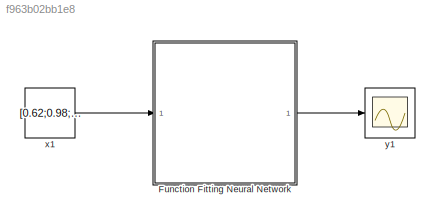
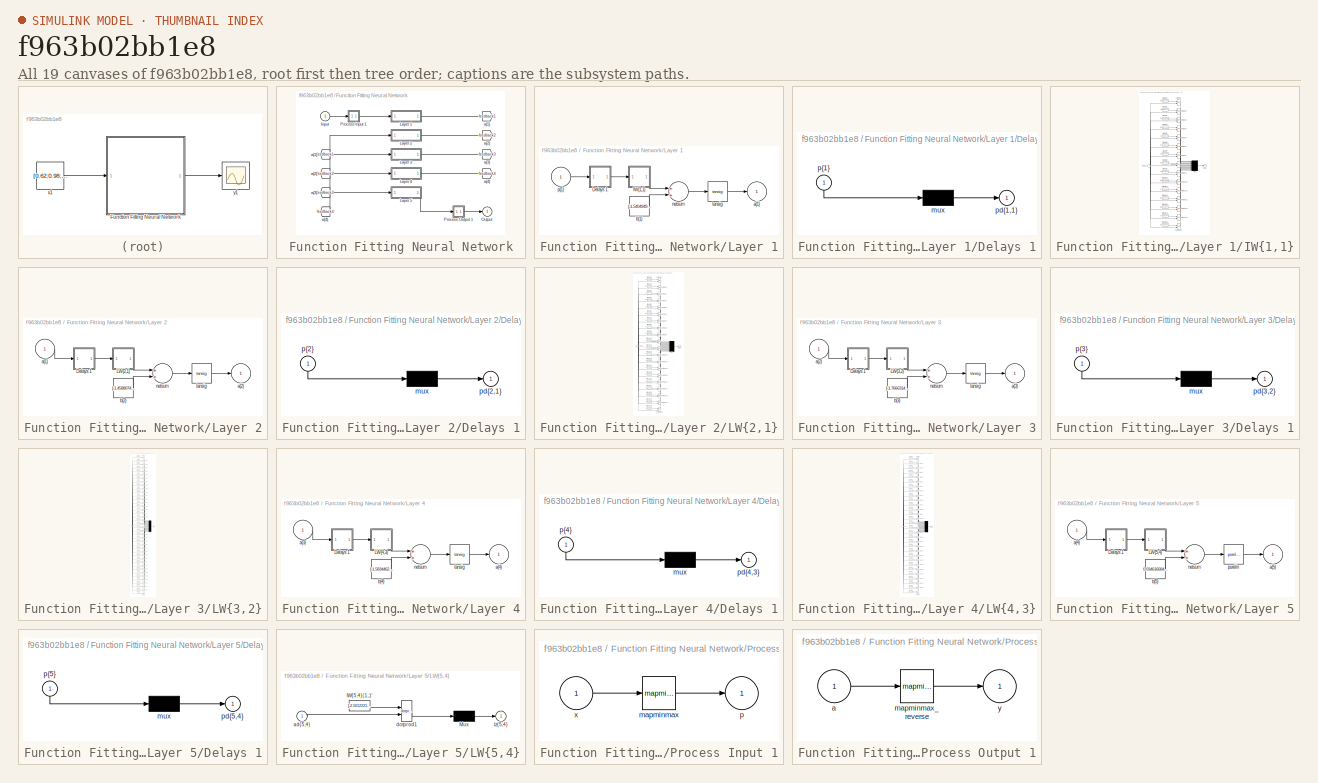
[diagram: thumbnail index - all 19 canvases of the model, root first then tree order]
MODEL slx_f963b02bb1e8
KIND model
CONFIG AbsTol = auto
CONFIG EnableMultiTasking = off
CONFIG FixedStep = auto
CONFIG MaxStep = auto
CONFIG MinStep = auto
CONFIG RelTol = 1e-3
CONFIG SampleTimeConstraint = Unconstrained
CONFIG Solver = VariableStepAuto
CONFIG SolverName = VariableStepAuto
CONFIG StartTime = 0.0
CONFIG StopTime = 10.0
BLOCK [SubSystem] Function Fitting Neural Network
  Ports = [1, 1]
  RequestExecContextInheritance = off
BLOCK [From] Function Fitting Neural Network/ a{1} 
  GotoTag = feedback1
BLOCK [From] Function Fitting Neural Network/ a{2} 
  GotoTag = feedback2
BLOCK [From] Function Fitting Neural Network/ a{3} 
  GotoTag = feedback3
BLOCK [From] Function Fitting Neural Network/ a{4} 
  GotoTag = feedback4
BLOCK [Inport] Function Fitting Neural Network/Input
  IconDisplay = Port number
  PortDimensions = 7
BLOCK [SubSystem] Function Fitting Neural Network/Layer 1
  Ports = [1, 1]
  RequestExecContextInheritance = off
BLOCK [SubSystem] Function Fitting Neural Network/Layer 1/Delays 1
  Ports = [1, 1]
  RequestExecContextInheritance = off
BLOCK [Mux] Function Fitting Neural Network/Layer 1/Delays 1/mux
  Inputs = 1
  Ports = [1, 1]
BLOCK [Outport] Function Fitting Neural Network/Layer 1/Delays 1/pd{1,1}
  IconDisplay = Port number
BLOCK [Inport] Function Fitting Neural Network/Layer 1/Delays 1/p{1}
  IconDisplay = Port number
  PortDimensions = 7
BLOCK [SubSystem] Function Fitting Neural Network/Layer 1/IW{1,1}
  Ports = [1, 1]
  RequestExecContextInheritance = off
BLOCK [Constant] Function Fitting Neural Network/Layer 1/IW{1,1}/IW{1,1}(1,:)'
  Value = [0.3800073446377234542836731634452007710933685302734375;1.9136543568568897821791097157984040677547454833984375;0.80111392471471976062247222216683439910411834716796875;0.91719358888524993300706000809441320598125457763671875;-1.9025749446656217145346090546809136867523193359375;0.311685561333595317901057342169224284589290618896484375;0.440547323302395155142363591949106194078922271728515625]
BLOCK [Constant] Function Fitting Neural Network/Layer 1/IW{1,1}/IW{1,1}(10,:)'
  Value = [0.255105626116386208224184883874841034412384033203125;-0.404211921560386822083188462784164585173130035400390625;-0.0208797404239188071073396457677517901174724102020263671875;-2.343118498386828729707076490740291774272918701171875;0.197249614756305591267704357960610650479793548583984375;1.7518199340941347230682367808185517787933349609375;-0.4797820178861724738084149066708050668239593505859375]
BLOCK [Constant] Function Fitting Neural Network/Layer 1/IW{1,1}/IW{1,1}(11,:)'
  Value = [-0.7415481920696096462819468797533772885799407958984375;-0.977150431067734803747271143947727978229522705078125;-1.1441687951367252029655219303094781935214996337890625;-0.5482693331192864949485965553321875631809234619140625;-0.06359470615586677866293285887877573259174823760986328125;-2.004163650837555987749283303855918347835540771484375;-0.0770555835390533128137491303277784027159214019775390625]
BLOCK [Constant] Function Fitting Neural Network/Layer 1/IW{1,1}/IW{1,1}(12,:)'
  Value = [0.90223729110374806250405299579142592847347259521484375;-0.3560139121347474233658658704371191561222076416015625;0.148554992737205682207246582038351334631443023681640625;0.8027424043507835893507262881030328571796417236328125;0.62912877127964395018722143504419364035129547119140625;-1.3636284138412355648739548996672965586185455322265625;-1.2992722205164748405792352059506811201572418212890625]
BLOCK [Constant] Function Fitting Neural Network/Layer 1/IW{1,1}/IW{1,1}(13,:)'
  Value = [0.6210537540968468217528197783394716680049896240234375;0.49870550238751387706059858828666619956493377685546875;0.2206804812328500009499521183897741138935089111328125;-1.1348061309954149411538537606247700750827789306640625;0.135687171565671338413494595442898571491241455078125;-1.320373676665966389265349789639003574848175048828125;0.56994722266440056568370664535905234515666961669921875]
BLOCK [Constant] Function Fitting Neural Network/Layer 1/IW{1,1}/IW{1,1}(14,:)'
  Value = [-0.34453786648096296207910427256138063967227935791015625;2.2908292264415610617334095877595245838165283203125;-1.3240734599084043043859537647222168743610382080078125;1.7919356043175869164230107344337739050388336181640625;0.97290227214797153632019899305305443704128265380859375;-2.9014758835122140823159497813321650028228759765625;1.86772816996523172150546088232658803462982177734375]
BLOCK [Constant] Function Fitting Neural Network/Layer 1/IW{1,1}/IW{1,1}(15,:)'
  Value = [1.5148650173766409210429628728888928890228271484375;-1.0671536654995907866805282537825405597686767578125;0.94891793244813182894858982763253152370452880859375;-0.47656425180159411869595942334854044020175933837890625;0.143417337696997437834767197273322381079196929931640625;-0.970351031890374304822444173623807728290557861328125;0.51069874860463304599988987320102751255035400390625]
BLOCK [Constant] Function Fitting Neural Network/Layer 1/IW{1,1}/IW{1,1}(2,:)'
  Value = [-0.53537144610849451975553847660194151103496551513671875;-3.055572339539115223061571668949909508228302001953125;-0.11192654564174119025121711956671788357198238372802734375;0.88624779300400724491026949181105010211467742919921875;0.792830000201248719093882755259983241558074951171875;-0.11918242422180376494100784157126327045261859893798828125;1.486343329449891559335128476959653198719024658203125]
BLOCK [Constant] Function Fitting Neural Network/Layer 1/IW{1,1}/IW{1,1}(3,:)'
  Value = [0.21909936006111141448826629130053333938121795654296875;-0.86978524461741013595883487141691148281097412109375;0.648134337435422924755812346120364964008331298828125;1.1537881936255003356706083650351502001285552978515625;2.69705470215552178814277795027010142803192138671875;-0.497112878494841370358159338138648308813571929931640625;-1.8695057308089662040373468698817305266857147216796875]
BLOCK [Constant] Function Fitting Neural Network/Layer 1/IW{1,1}/IW{1,1}(4,:)'
  Value = [0.258732113371274385915654647760675288736820220947265625;0.07543359266517402073048970123636536300182342529296875;-0.80018485334371458606028681970201432704925537109375;-1.0425355539049707687127011013217270374298095703125;0.5889855727536581486702971233171410858631134033203125;-0.93399149947386084225087188315228559076786041259765625;3.31842442660982595015184415387921035289764404296875]
BLOCK [Constant] Function Fitting Neural Network/Layer 1/IW{1,1}/IW{1,1}(5,:)'
  Value = [-0.7586030952626405809979814875987358391284942626953125;-0.96901908260774216596900032527628354728221893310546875;-1.282538221340508766132870732690207660198211669921875;2.29930836643154723475390710518695414066314697265625;0.6365871842687436110708176784100942313671112060546875;1.7408321699153821437988653997308574616909027099609375;-1.435395234085621307684732528286986052989959716796875]
BLOCK [Constant] Function Fitting Neural Network/Layer 1/IW{1,1}/IW{1,1}(6,:)'
  Value = [1.114934233913440042584852562868036329746246337890625;-0.7451212620914777762237690694746561348438262939453125;-0.69831819121789029392033398835337720811367034912109375;-0.94546612182265798995928207659744657576084136962890625;-1.4650803908430758415448735831887461245059967041015625;0.328980669804825709423568014244665391743183135986328125;1.3331196347905513999165805216762237250804901123046875]
BLOCK [Constant] Function Fitting Neural Network/Layer 1/IW{1,1}/IW{1,1}(7,:)'
  Value = [-0.05976468153657876758444444931228645145893096923828125;-1.3439952913430464054300728093949146568775177001953125;1.7213850266218659879058350270497612655162811279296875;-0.68657142994326392226867028512060642242431640625;-1.157274971209289571305589561234228312969207763671875;-0.74216030757278428353629351477138698101043701171875;-1.0421985750688753658010909930453635752201080322265625]
BLOCK [Constant] Function Fitting Neural Network/Layer 1/IW{1,1}/IW{1,1}(8,:)'
  Value = [1.951432085550506290161365541280247271060943603515625;-0.366948472233766198602467056844034232199192047119140625;1.478477734823627098847964589367620646953582763671875;0.51688192132082610985577275641844607889652252197265625;2.87788997017303938008581098983995616436004638671875;0.37626641532139026846692786421044729650020599365234375;3.8067883702250160382618560106493532657623291015625]
BLOCK [Constant] Function Fitting Neural Network/Layer 1/IW{1,1}/IW{1,1}(9,:)'
  Value = [-0.04499105188549555600641127739436342380940914154052734375;0.460785851385142886105228399173938669264316558837890625;-1.983948347963993885656464044586755335330963134765625;-0.67577603566051769323763664942816831171512603759765625;-0.72756047750196806145339678550953976809978485107421875;-1.9606021977339544992702258241479285061359405517578125;-1.3635191589940955925186472086352296173572540283203125]
BLOCK [Mux] Function Fitting Neural Network/Layer 1/IW{1,1}/Mux
  Inputs = 15
  Ports = [15, 1]
BLOCK [Reference] Function Fitting Neural Network/Layer 1/IW{1,1}/dotprod1  REF=neural/Weight Functions/dotprod
  Ports = [2, 1]
  SourceBlock = neural/Weight Functions/dotprod
  SourceProductBaseCode = NN
  SourceProductName = Neural Network Toolbox
  SourceType = DOTPROD
BLOCK [Reference] Function Fitting Neural Network/Layer 1/IW{1,1}/dotprod10  REF=neural/Weight Functions/dotprod
  Ports = [2, 1]
  SourceBlock = neural/Weight Functions/dotprod
  SourceProductBaseCode = NN
  SourceProductName = Neural Network Toolbox
  SourceType = DOTPROD
BLOCK [Reference] Function Fitting Neural Network/Layer 1/IW{1,1}/dotprod11  REF=neural/Weight Functions/dotprod
  Ports = [2, 1]
  SourceBlock = neural/Weight Functions/dotprod
  SourceProductBaseCode = NN
  SourceProductName = Neural Network Toolbox
  SourceType = DOTPROD
BLOCK [Reference] Function Fitting Neural Network/Layer 1/IW{1,1}/dotprod12  REF=neural/Weight Functions/dotprod
  Ports = [2, 1]
  SourceBlock = neural/Weight Functions/dotprod
  SourceProductBaseCode = NN
  SourceProductName = Neural Network Toolbox
  SourceType = DOTPROD
BLOCK [Reference] Function Fitting Neural Network/Layer 1/IW{1,1}/dotprod13  REF=neural/Weight Functions/dotprod
  Ports = [2, 1]
  SourceBlock = neural/Weight Functions/dotprod
  SourceProductBaseCode = NN
  SourceProductName = Neural Network Toolbox
  SourceType = DOTPROD
BLOCK [Reference] Function Fitting Neural Network/Layer 1/IW{1,1}/dotprod14  REF=neural/Weight Functions/dotprod
  Ports = [2, 1]
  SourceBlock = neural/Weight Functions/dotprod
  SourceProductBaseCode = NN
  SourceProductName = Neural Network Toolbox
  SourceType = DOTPROD
BLOCK [Reference] Function Fitting Neural Network/Layer 1/IW{1,1}/dotprod15  REF=neural/Weight Functions/dotprod
  Ports = [2, 1]
  SourceBlock = neural/Weight Functions/dotprod
  SourceProductBaseCode = NN
  SourceProductName = Neural Network Toolbox
  SourceType = DOTPROD
BLOCK [Reference] Function Fitting Neural Network/Layer 1/IW{1,1}/dotprod2  REF=neural/Weight Functions/dotprod
  Ports = [2, 1]
  SourceBlock = neural/Weight Functions/dotprod
  SourceProductBaseCode = NN
  SourceProductName = Neural Network Toolbox
  SourceType = DOTPROD
BLOCK [Reference] Function Fitting Neural Network/Layer 1/IW{1,1}/dotprod3  REF=neural/Weight Functions/dotprod
  Ports = [2, 1]
  SourceBlock = neural/Weight Functions/dotprod
  SourceProductBaseCode = NN
  SourceProductName = Neural Network Toolbox
  SourceType = DOTPROD
BLOCK [Reference] Function Fitting Neural Network/Layer 1/IW{1,1}/dotprod4  REF=neural/Weight Functions/dotprod
  Ports = [2, 1]
  SourceBlock = neural/Weight Functions/dotprod
  SourceProductBaseCode = NN
  SourceProductName = Neural Network Toolbox
  SourceType = DOTPROD
BLOCK [Reference] Function Fitting Neural Network/Layer 1/IW{1,1}/dotprod5  REF=neural/Weight Functions/dotprod
  Ports = [2, 1]
  SourceBlock = neural/Weight Functions/dotprod
  SourceProductBaseCode = NN
  SourceProductName = Neural Network Toolbox
  SourceType = DOTPROD
BLOCK [Reference] Function Fitting Neural Network/Layer 1/IW{1,1}/dotprod6  REF=neural/Weight Functions/dotprod
  Ports = [2, 1]
  SourceBlock = neural/Weight Functions/dotprod
  SourceProductBaseCode = NN
  SourceProductName = Neural Network Toolbox
  SourceType = DOTPROD
BLOCK [Reference] Function Fitting Neural Network/Layer 1/IW{1,1}/dotprod7  REF=neural/Weight Functions/dotprod
  Ports = [2, 1]
  SourceBlock = neural/Weight Functions/dotprod
  SourceProductBaseCode = NN
  SourceProductName = Neural Network Toolbox
  SourceType = DOTPROD
BLOCK [Reference] Function Fitting Neural Network/Layer 1/IW{1,1}/dotprod8  REF=neural/Weight Functions/dotprod
  Ports = [2, 1]
  SourceBlock = neural/Weight Functions/dotprod
  SourceProductBaseCode = NN
  SourceProductName = Neural Network Toolbox
  SourceType = DOTPROD
BLOCK [Reference] Function Fitting Neural Network/Layer 1/IW{1,1}/dotprod9  REF=neural/Weight Functions/dotprod
  Ports = [2, 1]
  SourceBlock = neural/Weight Functions/dotprod
  SourceProductBaseCode = NN
  SourceProductName = Neural Network Toolbox
  SourceType = DOTPROD
BLOCK [Outport] Function Fitting Neural Network/Layer 1/IW{1,1}/iz{1,1}
  IconDisplay = Port number
BLOCK [Inport] Function Fitting Neural Network/Layer 1/IW{1,1}/pd{1,1}
  IconDisplay = Port number
  PortDimensions = 7
BLOCK [Outport] Function Fitting Neural Network/Layer 1/a{1}
  IconDisplay = Port number
  InitialOutput = [0;0;0;0;0;0;0;0;0;0;0;0;0;0;0]
BLOCK [Constant] Function Fitting Neural Network/Layer 1/b{1}
  Value = [-1.5404949004645833721127701210207305848598480224609375;1.8494251311275065052797117459704168140888214111328125;-1.8003194000116167217129259370267391204833984375;-1.6947095962513942790650389724760316312313079833984375;0.136529289777562456986714778395253233611583709716796875;-0.469320670361055236607938923043548129498958587646484375;-0.016509390563433361254208620039207744412124156951904296875;1.0389...<+438ch>
BLOCK [Sum] Function Fitting Neural Network/Layer 1/netsum
  Inputs = 2
  Ports = [2, 1]
BLOCK [Inport] Function Fitting Neural Network/Layer 1/p{1}
  IconDisplay = Port number
  PortDimensions = 7
BLOCK [Reference] Function Fitting Neural Network/Layer 1/tansig  REF=neural/Transfer Functions/tansig
  Ports = [1, 1]
  SourceBlock = neural/Transfer Functions/tansig
  SourceProductBaseCode = NN
  SourceProductName = Neural Network Toolbox
  SourceType = TANSIG
BLOCK [SubSystem] Function Fitting Neural Network/Layer 2
  Ports = [1, 1]
  RequestExecContextInheritance = off
BLOCK [SubSystem] Function Fitting Neural Network/Layer 2/Delays 1
  Ports = [1, 1]
  RequestExecContextInheritance = off
BLOCK [Mux] Function Fitting Neural Network/Layer 2/Delays 1/mux
  Inputs = 1
  Ports = [1, 1]
BLOCK [Outport] Function Fitting Neural Network/Layer 2/Delays 1/pd{2,1}
  IconDisplay = Port number
BLOCK [Inport] Function Fitting Neural Network/Layer 2/Delays 1/p{2}
  IconDisplay = Port number
  PortDimensions = 15
BLOCK [SubSystem] Function Fitting Neural Network/Layer 2/LW{2,1}
  Ports = [1, 1]
  RequestExecContextInheritance = off
BLOCK [Constant] Function Fitting Neural Network/Layer 2/LW{2,1}/IW{2,1}(1,:)'
  Value = [0.311422850787007321482491306596784852445125579833984375;0.7751264504942607658222186728380620479583740234375;0.44388822158615870439035688832518644630908966064453125;-0.5279106619244806619661858348990790545940399169921875;-0.83403671797468981186085557055776007473468780517578125;0.42597861519442059563544944467139430344104766845703125;0.52183812102190518800171048496849834918975830078125;1.2981488670...<+442ch>
BLOCK [Constant] Function Fitting Neural Network/Layer 2/LW{2,1}/IW{2,1}(10,:)'
  Value = [-1.196493349707492104272432698053307831287384033203125;-1.9033017053726037914884727797470986843109130859375;-0.566435107681075411534266095259226858615875244140625;-0.235128657406630525716906277011730708181858062744140625;-0.0102492559159207997920848498552004457451403141021728515625;0.95291529557012510931457427432178519666194915771484375;0.1175759616946230601275402705141459591686725616455078125;-0...<+446ch>
BLOCK [Constant] Function Fitting Neural Network/Layer 2/LW{2,1}/IW{2,1}(11,:)'
  Value = [0.628226288117435416324951802380383014678955078125;-0.92172722713240862191241831169463694095611572265625;-1.5075938563816848603238440773566253483295440673828125;0.1358137287504016244010784930651425383985042572021484375;0.8992387041796805480231569163152016699314117431640625;1.35056139863648905219406515243463218212127685546875;-0.3527964580076616840642600436694920063018798828125;-0.7697210953740111...<+437ch>
BLOCK [Constant] Function Fitting Neural Network/Layer 2/LW{2,1}/IW{2,1}(12,:)'
  Value = [-0.1533045077190981764214683380487258546054363250732421875;0.633281741119435803710757681983523070812225341796875;-0.8428051104620124522881496886839158833026885986328125;0.3229053140080304640235908664180897176265716552734375;-1.033798623088445278739300192683003842830657958984375;0.37525151778750254205618830383173190057277679443359375;-0.69900894905554455949214798238244839012622833251953125;0.15150...<+433ch>
BLOCK [Constant] Function Fitting Neural Network/Layer 2/LW{2,1}/IW{2,1}(13,:)'
  Value = [-0.3582552842935833314896854062681086361408233642578125;-0.8049898626625175968030134754371829330921173095703125;-0.157061154350313703087493877319502644240856170654296875;-0.3308887924670445013219932661741040647029876708984375;-0.3747828185061290451329796269419603049755096435546875;0.55916127112405200616507272570743225514888763427734375;-0.2664018893016029121412202584906481206417083740234375;2.016...<+433ch>
BLOCK [Constant] Function Fitting Neural Network/Layer 2/LW{2,1}/IW{2,1}(14,:)'
  Value = [-1.7571317534950938732407621500897221267223358154296875;1.281882591975012086749075024272315204143524169921875;0.413883581156023028224666404639719985425472259521484375;-1.114193780050189985786346369422972202301025390625;-0.356894899090195505397815622927737422287464141845703125;-0.345550292819938487109965308263781480491161346435546875;-0.01382486197451656718959700498317033634521067142486572265625;1...<+434ch>
BLOCK [Constant] Function Fitting Neural Network/Layer 2/LW{2,1}/IW{2,1}(15,:)'
  Value = [0.364833234107867665496627296306542120873928070068359375;-0.30144024072499353561482848817831836640834808349609375;1.21474907015470723337102754157967865467071533203125;0.40737871626799526669771012166165746748447418212890625;-0.449331583217544572317336815103772096335887908935546875;-0.9811952164464312620140162835014052689075469970703125;0.5050521881056251327635209236177615821361541748046875;0.50896...<+439ch>
BLOCK [Constant] Function Fitting Neural Network/Layer 2/LW{2,1}/IW{2,1}(16,:)'
  Value = [-0.83384485472877301059924093351582996547222137451171875;0.349700058806152902501906964971567504107952117919921875;-0.62170291342599914852229403550154529511928558349609375;0.292780997401241582789310768930590711534023284912109375;-0.1317844539089476352256014024533214978873729705810546875;0.9635369040623615877194652057369239628314971923828125;-0.552019869041644017926273591001518070697784423828125;0....<+451ch>
BLOCK [Constant] Function Fitting Neural Network/Layer 2/LW{2,1}/IW{2,1}(17,:)'
  Value = [0.9828416480595694171285003903903998434543609619140625;-0.00447433936165767855153152510183645063079893589019775390625;0.484819507193939347455824417920666746795177459716796875;0.36772944827854769922481636967859230935573577880859375;0.1874295453229047614396307608330971561372280120849609375;-0.241857396830986115521255896965158171951770782470703125;0.89703314187258220702148037162260152399539947509765...<+452ch>
BLOCK [Constant] Function Fitting Neural Network/Layer 2/LW{2,1}/IW{2,1}(18,:)'
  Value = [-1.6238080260157292666889361498760990798473358154296875;0.442733180301497941666610813626903109252452850341796875;0.84243998196827174496092993649654090404510498046875;-0.201532556844194576939344187849201261997222900390625;1.1936345147000453348340442971675656735897064208984375;0.2521614586402727287151037671719677746295928955078125;-0.5681342626237053661242271118680946528911590576171875;-0.721566575...<+451ch>
BLOCK [Constant] Function Fitting Neural Network/Layer 2/LW{2,1}/IW{2,1}(19,:)'
  Value = [-0.50724864889554854840980624430812895298004150390625;0.17707083897939224215178910526446998119354248046875;-1.429838533361840635649286923580802977085113525390625;-0.7998479139826191186557480250485241413116455078125;-0.53231465664685961858282325920299626886844635009765625;-0.23588513939066146907208576521952636539936065673828125;1.5365089734066341708995651060831733047962188720703125;1.9152715029689...<+426ch>
BLOCK [Constant] Function Fitting Neural Network/Layer 2/LW{2,1}/IW{2,1}(2,:)'
  Value = [0.326624570959629156874370892182923853397369384765625;-0.89127089149755123198559658703743480145931243896484375;0.11558281863677181966476581465030903927981853485107421875;0.00586570490964326458904753991419056546874344348907470703125;-0.0001611823024859904140981825548806227743625640869140625;0.37904033592009878095296926403534598648548126220703125;-0.2007355277358362499739996565040200948715209960937...<+456ch>
BLOCK [Constant] Function Fitting Neural Network/Layer 2/LW{2,1}/IW{2,1}(20,:)'
  Value = [-1.2523613241857718403338139978586696088314056396484375;1.3779991520018801676172870429581962525844573974609375;-0.021465441714215265089915618546001496724784374237060546875;-0.56923616936117105158388085328624583780765533447265625;0.71008549399321985173827442849869839847087860107421875;-0.035844296080774822044201499693372170440852642059326171875;-0.81104062508298424560848616238217800855636596679687...<+454ch>
BLOCK [Constant] Function Fitting Neural Network/Layer 2/LW{2,1}/IW{2,1}(3,:)'
  Value = [0.903871531569218067403426175587810575962066650390625;-1.554534031338975719194195335148833692073822021484375;0.091664109673773197517476774009992368519306182861328125;0.65433126695795185145954064864781685173511505126953125;1.2152003380649751829167826144839636981487274169921875;0.80534196988875816902719861900550313293933868408203125;-0.77328235018965496561094141725334338843822479248046875;-1.962447...<+436ch>
BLOCK [Constant] Function Fitting Neural Network/Layer 2/LW{2,1}/IW{2,1}(4,:)'
  Value = [0.85333238242224263014890084377839230000972747802734375;1.102547770888592015836593418498523533344268798828125;-0.6115966637923495596851353184320032596588134765625;0.357612447454607573771312445387593470513820648193359375;-0.7203595858411964147904882338480092585086822509765625;0.2382002872195359832740990668753511272370815277099609375;0.994977847619332056439134248648770153522491455078125;-0.56953952...<+445ch>
BLOCK [Constant] Function Fitting Neural Network/Layer 2/LW{2,1}/IW{2,1}(5,:)'
  Value = [1.2622781684468320495540183401317335665225982666015625;-0.434253522528091961962815048536867834627628326416015625;0.30981571694831278040993538525071926414966583251953125;-0.59036032275636440846966479512047953903675079345703125;1.168604172607446312071033389656804502010345458984375;0.289583289429271417692035583968390710651874542236328125;-0.09922284115267944459848337146468111313879489898681640625;-1...<+434ch>
BLOCK [Constant] Function Fitting Neural Network/Layer 2/LW{2,1}/IW{2,1}(6,:)'
  Value = [0.67712524494877890379740392745588906109333038330078125;-0.541938764996487076786024772445671260356903076171875;-1.45700186449414648137690164730884134769439697265625;-1.6350751416269952986937141758971847593784332275390625;2.412824282483764459783515121671371161937713623046875;0.4334932232404840046768867978244088590145111083984375;-0.78098997201126574285723336288356222212314605712890625;-1.206324968...<+433ch>
BLOCK [Constant] Function Fitting Neural Network/Layer 2/LW{2,1}/IW{2,1}(7,:)'
  Value = [0.54652857890969219756271968435612507164478302001953125;0.087461625220094152410865717683918774127960205078125;1.2564309584508286388171427461202256381511688232421875;1.017515446033993686825169788789935410022735595703125;-0.61580653012458907991089063216350041329860687255859375;-0.1992342669562275070394008480434422381222248077392578125;-0.97671333946603822173671005657524801790714263916015625;0.39306...<+441ch>
BLOCK [Constant] Function Fitting Neural Network/Layer 2/LW{2,1}/IW{2,1}(8,:)'
  Value = [-0.017901974992636120187494697120200726203620433807373046875;-0.46425361921262264797150010053883306682109832763671875;-0.43510133632100955747290527142467908561229705810546875;0.0681872156037333920775012074955157004296779632568359375;-0.62569079339751121349166851359768770635128021240234375;0.7983959068392412206094377324916422367095947265625;-0.82203573699477716640870994524448178708553314208984375;...<+453ch>
BLOCK [Constant] Function Fitting Neural Network/Layer 2/LW{2,1}/IW{2,1}(9,:)'
  Value = [0.36852192046598108987609521136619150638580322265625;1.6324598435615438329904236525180749595165252685546875;-0.7824734978738145940724280080758035182952880859375;-1.023268766721888045623245488968677818775177001953125;0.156584911970185258756060875384719111025333404541015625;1.4165100155600141018652493585250340402126312255859375;-0.2734519195112359302157756246742792427539825439453125;1.4885695736035...<+425ch>
BLOCK [Mux] Function Fitting Neural Network/Layer 2/LW{2,1}/Mux
  Inputs = 20
  Ports = [20, 1]
BLOCK [Inport] Function Fitting Neural Network/Layer 2/LW{2,1}/ad{2,1}
  IconDisplay = Port number
  PortDimensions = 15
BLOCK [Reference] Function Fitting Neural Network/Layer 2/LW{2,1}/dotprod1  REF=neural/Weight Functions/dotprod
  Ports = [2, 1]
  SourceBlock = neural/Weight Functions/dotprod
  SourceProductBaseCode = NN
  SourceProductName = Neural Network Toolbox
  SourceType = DOTPROD
BLOCK [Reference] Function Fitting Neural Network/Layer 2/LW{2,1}/dotprod10  REF=neural/Weight Functions/dotprod
  Ports = [2, 1]
  SourceBlock = neural/Weight Functions/dotprod
  SourceProductBaseCode = NN
  SourceProductName = Neural Network Toolbox
  SourceType = DOTPROD
BLOCK [Reference] Function Fitting Neural Network/Layer 2/LW{2,1}/dotprod11  REF=neural/Weight Functions/dotprod
  Ports = [2, 1]
  SourceBlock = neural/Weight Functions/dotprod
  SourceProductBaseCode = NN
  SourceProductName = Neural Network Toolbox
  SourceType = DOTPROD
BLOCK [Reference] Function Fitting Neural Network/Layer 2/LW{2,1}/dotprod12  REF=neural/Weight Functions/dotprod
  Ports = [2, 1]
  SourceBlock = neural/Weight Functions/dotprod
  SourceProductBaseCode = NN
  SourceProductName = Neural Network Toolbox
  SourceType = DOTPROD
BLOCK [Reference] Function Fitting Neural Network/Layer 2/LW{2,1}/dotprod13  REF=neural/Weight Functions/dotprod
  Ports = [2, 1]
  SourceBlock = neural/Weight Functions/dotprod
  SourceProductBaseCode = NN
  SourceProductName = Neural Network Toolbox
  SourceType = DOTPROD
BLOCK [Reference] Function Fitting Neural Network/Layer 2/LW{2,1}/dotprod14  REF=neural/Weight Functions/dotprod
  Ports = [2, 1]
  SourceBlock = neural/Weight Functions/dotprod
  SourceProductBaseCode = NN
  SourceProductName = Neural Network Toolbox
  SourceType = DOTPROD
BLOCK [Reference] Function Fitting Neural Network/Layer 2/LW{2,1}/dotprod15  REF=neural/Weight Functions/dotprod
  Ports = [2, 1]
  SourceBlock = neural/Weight Functions/dotprod
  SourceProductBaseCode = NN
  SourceProductName = Neural Network Toolbox
  SourceType = DOTPROD
BLOCK [Reference] Function Fitting Neural Network/Layer 2/LW{2,1}/dotprod16  REF=neural/Weight Functions/dotprod
  Ports = [2, 1]
  SourceBlock = neural/Weight Functions/dotprod
  SourceProductBaseCode = NN
  SourceProductName = Neural Network Toolbox
  SourceType = DOTPROD
BLOCK [Reference] Function Fitting Neural Network/Layer 2/LW{2,1}/dotprod17  REF=neural/Weight Functions/dotprod
  Ports = [2, 1]
  SourceBlock = neural/Weight Functions/dotprod
  SourceProductBaseCode = NN
  SourceProductName = Neural Network Toolbox
  SourceType = DOTPROD
BLOCK [Reference] Function Fitting Neural Network/Layer 2/LW{2,1}/dotprod18  REF=neural/Weight Functions/dotprod
  Ports = [2, 1]
  SourceBlock = neural/Weight Functions/dotprod
  SourceProductBaseCode = NN
  SourceProductName = Neural Network Toolbox
  SourceType = DOTPROD
BLOCK [Reference] Function Fitting Neural Network/Layer 2/LW{2,1}/dotprod19  REF=neural/Weight Functions/dotprod
  Ports = [2, 1]
  SourceBlock = neural/Weight Functions/dotprod
  SourceProductBaseCode = NN
  SourceProductName = Neural Network Toolbox
  SourceType = DOTPROD
BLOCK [Reference] Function Fitting Neural Network/Layer 2/LW{2,1}/dotprod2  REF=neural/Weight Functions/dotprod
  Ports = [2, 1]
  SourceBlock = neural/Weight Functions/dotprod
  SourceProductBaseCode = NN
  SourceProductName = Neural Network Toolbox
  SourceType = DOTPROD
BLOCK [Reference] Function Fitting Neural Network/Layer 2/LW{2,1}/dotprod20  REF=neural/Weight Functions/dotprod
  Ports = [2, 1]
  SourceBlock = neural/Weight Functions/dotprod
  SourceProductBaseCode = NN
  SourceProductName = Neural Network Toolbox
  SourceType = DOTPROD
BLOCK [Reference] Function Fitting Neural Network/Layer 2/LW{2,1}/dotprod3  REF=neural/Weight Functions/dotprod
  Ports = [2, 1]
  SourceBlock = neural/Weight Functions/dotprod
  SourceProductBaseCode = NN
  SourceProductName = Neural Network Toolbox
  SourceType = DOTPROD
BLOCK [Reference] Function Fitting Neural Network/Layer 2/LW{2,1}/dotprod4  REF=neural/Weight Functions/dotprod
  Ports = [2, 1]
  SourceBlock = neural/Weight Functions/dotprod
  SourceProductBaseCode = NN
  SourceProductName = Neural Network Toolbox
  SourceType = DOTPROD
BLOCK [Reference] Function Fitting Neural Network/Layer 2/LW{2,1}/dotprod5  REF=neural/Weight Functions/dotprod
  Ports = [2, 1]
  SourceBlock = neural/Weight Functions/dotprod
  SourceProductBaseCode = NN
  SourceProductName = Neural Network Toolbox
  SourceType = DOTPROD
BLOCK [Reference] Function Fitting Neural Network/Layer 2/LW{2,1}/dotprod6  REF=neural/Weight Functions/dotprod
  Ports = [2, 1]
  SourceBlock = neural/Weight Functions/dotprod
  SourceProductBaseCode = NN
  SourceProductName = Neural Network Toolbox
  SourceType = DOTPROD
BLOCK [Reference] Function Fitting Neural Network/Layer 2/LW{2,1}/dotprod7  REF=neural/Weight Functions/dotprod
  Ports = [2, 1]
  SourceBlock = neural/Weight Functions/dotprod
  SourceProductBaseCode = NN
  SourceProductName = Neural Network Toolbox
  SourceType = DOTPROD
BLOCK [Reference] Function Fitting Neural Network/Layer 2/LW{2,1}/dotprod8  REF=neural/Weight Functions/dotprod
  Ports = [2, 1]
  SourceBlock = neural/Weight Functions/dotprod
  SourceProductBaseCode = NN
  SourceProductName = Neural Network Toolbox
  SourceType = DOTPROD
BLOCK [Reference] Function Fitting Neural Network/Layer 2/LW{2,1}/dotprod9  REF=neural/Weight Functions/dotprod
  Ports = [2, 1]
  SourceBlock = neural/Weight Functions/dotprod
  SourceProductBaseCode = NN
  SourceProductName = Neural Network Toolbox
  SourceType = DOTPROD
BLOCK [Outport] Function Fitting Neural Network/Layer 2/LW{2,1}/lz{2,1}
  IconDisplay = Port number
BLOCK [Inport] Function Fitting Neural Network/Layer 2/a{1} 
  IconDisplay = Port number
  PortDimensions = 15
BLOCK [Outport] Function Fitting Neural Network/Layer 2/a{2}
  IconDisplay = Port number
  InitialOutput = [0;0;0;0;0;0;0;0;0;0;0;0;0;0;0;0;0;0;0;0]
BLOCK [Constant] Function Fitting Neural Network/Layer 2/b{2}
  Value = [-1.4588074784239903891602807561866939067840576171875;-1.4030311092973490882940268420497886836528778076171875;-1.3007430582596877233214627267443574965000152587890625;-1.1756747259679329875581288433750160038471221923828125;-0.838347881019873231167593985446728765964508056640625;0.983747176983333471156356608844362199306488037109375;-0.49063943030721379745529020510730333626270294189453125;-0.425476353...<+721ch>
BLOCK [Sum] Function Fitting Neural Network/Layer 2/netsum
  Inputs = 2
  Ports = [2, 1]
BLOCK [Reference] Function Fitting Neural Network/Layer 2/tansig  REF=neural/Transfer Functions/tansig
  Ports = [1, 1]
  SourceBlock = neural/Transfer Functions/tansig
  SourceProductBaseCode = NN
  SourceProductName = Neural Network Toolbox
  SourceType = TANSIG
BLOCK [SubSystem] Function Fitting Neural Network/Layer 3
  Ports = [1, 1]
  RequestExecContextInheritance = off
BLOCK [SubSystem] Function Fitting Neural Network/Layer 3/Delays 1
  Ports = [1, 1]
  RequestExecContextInheritance = off
BLOCK [Mux] Function Fitting Neural Network/Layer 3/Delays 1/mux
  Inputs = 1
  Ports = [1, 1]
BLOCK [Outport] Function Fitting Neural Network/Layer 3/Delays 1/pd{3,2}
  IconDisplay = Port number
BLOCK [Inport] Function Fitting Neural Network/Layer 3/Delays 1/p{3}
  IconDisplay = Port number
  PortDimensions = 20
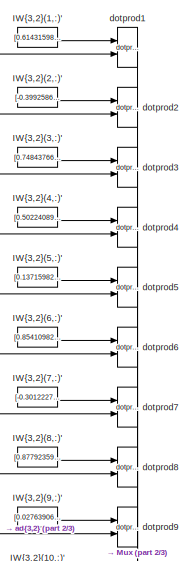
[diagram: Function Fitting Neural Network/Layer 3/LW{3,2} - part 1/3, top center region]
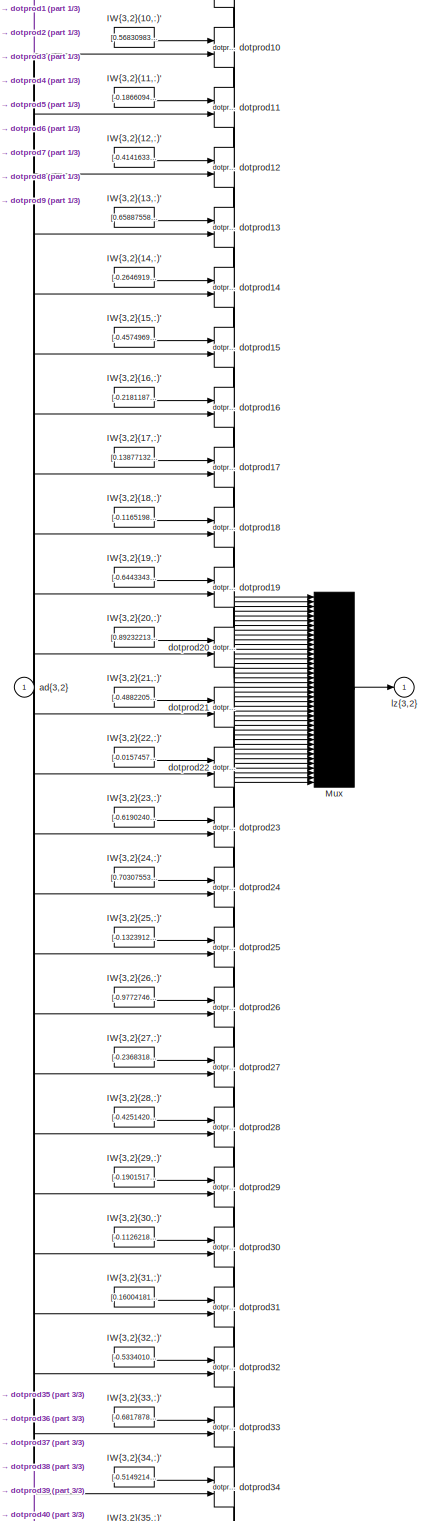
[diagram: Function Fitting Neural Network/Layer 3/LW{3,2} - part 2/3, full width, middle band]
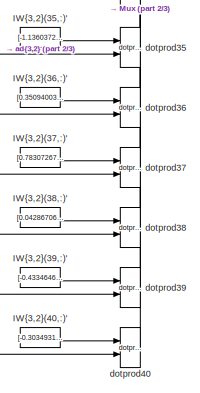
[diagram: Function Fitting Neural Network/Layer 3/LW{3,2} - part 3/3, bottom center region]
BLOCK [SubSystem] Function Fitting Neural Network/Layer 3/LW{3,2}
  Ports = [1, 1]
  RequestExecContextInheritance = off
BLOCK [Constant] Function Fitting Neural Network/Layer 3/LW{3,2}/IW{3,2}(1,:)'
  Value = [0.6143159803605999780273805299657396972179412841796875;0.3361052789761609371765871401294134557247161865234375;0.334114931267335990572320270075579173862934112548828125;0.50271010791335590806028221777523867785930633544921875;0.2234999045970605113797802232511457987129688262939453125;-0.5557041706787659851585203796275891363620758056640625;-0.70782323489388232484742502492736093699932098388671875;-0.19...<+744ch>
BLOCK [Constant] Function Fitting Neural Network/Layer 3/LW{3,2}/IW{3,2}(10,:)'
  Value = [0.56830983633949383460048920824192464351654052734375;-0.58978646298821779669907527932082302868366241455078125;-0.5090890527240687912780003898660652339458465576171875;-0.41252380968224044988090781771461479365825653076171875;0.0977675252327258881290816816544975154101848602294921875;0.283608436844539735233183819218538701534271240234375;-0.11684753872366461513454538589940057136118412017822265625;-0.7...<+728ch>
BLOCK [Constant] Function Fitting Neural Network/Layer 3/LW{3,2}/IW{3,2}(11,:)'
  Value = [-0.1866094592564173926252379942525294609367847442626953125;-0.0248427947147201975963692888171863160096108913421630859375;0.2674672739080208305750829822500236332416534423828125;-0.65057134867747590245556921217939816415309906005859375;-0.372698039057195285028711850827676244080066680908203125;0.2605338846648457273857957261498086154460906982421875;-0.28002322622329084422787559560674708336591720581054...<+746ch>
BLOCK [Constant] Function Fitting Neural Network/Layer 3/LW{3,2}/IW{3,2}(12,:)'
  Value = [-0.4141633442636611928122647441341541707515716552734375;-0.372953172851847369884126237593591213226318359375;-0.342097104406970442536106702391407452523708343505859375;-0.36090627834684141372889598642359487712383270263671875;-0.4985754766061580856018053964362479746341705322265625;0.347283827362091124246745721393381245434284210205078125;-0.11245385867996986195560538135396200232207775115966796875;0.2...<+733ch>
BLOCK [Constant] Function Fitting Neural Network/Layer 3/LW{3,2}/IW{3,2}(13,:)'
  Value = [0.65887558017522052100645169048220850527286529541015625;0.32210689327216146526922102566459216177463531494140625;-0.0146139311909865322880452964682262972928583621978759765625;-0.46653385323648277616115365162841044366359710693359375;0.477047150849882417578129434332367964088916778564453125;-0.64780882774405246227189536512014456093311309814453125;0.6335342273157020809293271668138913810253143310546875...<+736ch>
BLOCK [Constant] Function Fitting Neural Network/Layer 3/LW{3,2}/IW{3,2}(14,:)'
  Value = [-0.2646919360717012725814356599585153162479400634765625;-0.386388122927534938266802555517642758786678314208984375;0.67067421748734812325665188836865127086639404296875;-0.21800735193791265231766374199651181697845458984375;0.5486654784575739629559620880172587931156158447265625;0.1892336653619425546057897236096323467791080474853515625;-0.240462872461967069881438874290324747562408447265625;-0.3315971...<+729ch>
BLOCK [Constant] Function Fitting Neural Network/Layer 3/LW{3,2}/IW{3,2}(15,:)'
  Value = [-0.457496915017898742039648141144425608217716217041015625;0.0198166916060871188542957810341249569319188594818115234375;0.07590157050546646189115307379324804060161113739013671875;0.1658039678103497560623935669354978017508983612060546875;-0.14971968774315624894910570219508372247219085693359375;1.7237457565173157636451151120127178728580474853515625;0.8537582936259724419869598932564258575439453125;-0...<+722ch>
BLOCK [Constant] Function Fitting Neural Network/Layer 3/LW{3,2}/IW{3,2}(16,:)'
  Value = [-0.218118701130246284147773394579417072236537933349609375;-0.78991423041613473277067214439739473164081573486328125;-0.885009334025058880257574855932034552097320556640625;-0.1491805264500487837597830775848706252872943878173828125;0.4118200284536388533496165109681896865367889404296875;-0.293137474456643787323883998396922834217548370361328125;0.1640500949680665232488507854213821701705455780029296875...<+740ch>
BLOCK [Constant] Function Fitting Neural Network/Layer 3/LW{3,2}/IW{3,2}(17,:)'
  Value = [0.1387713223778463678126371405596728436648845672607421875;0.3948603998608797294167516156448982656002044677734375;0.20778629652226288104799323264160193502902984619140625;-0.74856150075854144265719014583737589418888092041015625;-0.4600890603076164264706449102959595620632171630859375;0.75084104513049798601542761389282532036304473876953125;-1.52157506956690635746554107754491269588470458984375;0.66771...<+724ch>
BLOCK [Constant] Function Fitting Neural Network/Layer 3/LW{3,2}/IW{3,2}(18,:)'
  Value = [-0.11651985103218669148628094944797339849174022674560546875;-0.54904514836209383776832737567019648849964141845703125;0.08360980829740603803568177454508258961141109466552734375;-0.50318677824089641514859749804600141942501068115234375;1.511781562306414361529505185899324715137481689453125;-0.86164959796564544181052269777865149080753326416015625;0.6685851249524874528873397139250300824642181396484375;...<+728ch>
BLOCK [Constant] Function Fitting Neural Network/Layer 3/LW{3,2}/IW{3,2}(19,:)'
  Value = [-0.64433434293679969773194216031697578728199005126953125;-0.99581260970829565959405726971453987061977386474609375;0.400667283165603793637643548208870925009250640869140625;-0.182632225721850061095352657503099180757999420166015625;0.884931522797285818882073726854287087917327880859375;0.149802320771627639484080418696976266801357269287109375;-0.93315771940650271698558526622946374118328094482421875;0....<+733ch>
BLOCK [Constant] Function Fitting Neural Network/Layer 3/LW{3,2}/IW{3,2}(2,:)'
  Value = [-0.3992586694656647949841499212197959423065185546875;-0.269905275023450463844909563704277388751506805419921875;0.777921017839414918881857374799437820911407470703125;0.28438283116578799702978130881092511117458343505859375;-0.0636340700994116048594406720440019853413105010986328125;-0.87819041641802597641941474648774601519107818603515625;0.48894328909128448312770842676400206983089447021484375;0.3805...<+724ch>
BLOCK [Constant] Function Fitting Neural Network/Layer 3/LW{3,2}/IW{3,2}(20,:)'
  Value = [0.8923221339391671502738745402893982827663421630859375;-0.04000984149704074621656246790735167451202869415283203125;1.1360918940802005039358846261166036128997802734375;-0.2184579134236921127421027222226257435977458953857421875;-0.35473650129987099877126865976606495678424835205078125;-0.5461208153065826298444562780787236988544464111328125;-0.67007674974363595765680656768381595611572265625;0.9087361...<+720ch>
BLOCK [Constant] Function Fitting Neural Network/Layer 3/LW{3,2}/IW{3,2}(21,:)'
  Value = [-0.488220504794795451264377561528817750513553619384765625;-0.1706014442001537456672366488419356755912303924560546875;-1.301136733463935879484552060603164136409759521484375;-0.1569885503094361201004147687854128889739513397216796875;0.1500994451895543979613734109079814516007900238037109375;-0.63555110585978635828752203451585955917835235595703125;-1.41488513940564386572873445402365177869796752929687...<+728ch>
BLOCK [Constant] Function Fitting Neural Network/Layer 3/LW{3,2}/IW{3,2}(22,:)'
  Value = [-0.015745780091373624831607713758785394020378589630126953125;-0.04967697013476470024873066222426132299005985260009765625;0.11159350215439055309385452119386172853410243988037109375;-0.26402994424192238742676863694214262068271636962890625;0.79387070332681297646360008002375252544879913330078125;0.14560504369544091662902474126894958317279815673828125;0.659682085674149654153097799280658364295959472656...<+728ch>
BLOCK [Constant] Function Fitting Neural Network/Layer 3/LW{3,2}/IW{3,2}(23,:)'
  Value = [-0.61902403334979461124731869858806021511554718017578125;-0.444011781098176794291276792137068696320056915283203125;-0.10938831670821098918100489072458003647625446319580078125;-0.141705020524074909449296910679549910128116607666015625;-0.0723078537050598491031649928117985837161540985107421875;-0.1001961900924635273657514744627405889332294464111328125;0.9040494171911919174533522891579195857048034667...<+748ch>
BLOCK [Constant] Function Fitting Neural Network/Layer 3/LW{3,2}/IW{3,2}(24,:)'
  Value = [0.7030755390600924581434583160444162786006927490234375;-0.8335665964933915983436918395454995334148406982421875;-0.380882649898216019135332999212550930678844451904296875;0.834406301147817774932491374784149229526519775390625;-0.059463332841091343095030197218875400722026824951171875;0.74781221502975891990416812404873780906200408935546875;0.2370354316817759043889424219742068089544773101806640625;-0.8...<+740ch>
BLOCK [Constant] Function Fitting Neural Network/Layer 3/LW{3,2}/IW{3,2}(25,:)'
  Value = [-0.1323912820781763255428842285255086608231067657470703125;0.599174490524127190127501307870261371135711669921875;1.2556926272776693931376712498604319989681243896484375;-0.10175071650916266141617683160802698694169521331787109375;-0.385351504584856618951249629390076734125614166259765625;-0.90883791005081604463811117966542951762676239013671875;0.111196868089175796012746388896630378440022468566894531...<+737ch>
BLOCK [Constant] Function Fitting Neural Network/Layer 3/LW{3,2}/IW{3,2}(26,:)'
  Value = [-0.97727468457647759247919339031795971095561981201171875;-0.216690691434401394577236033001099713146686553955078125;-0.1152169654823414213229426650286768563091754913330078125;0.1909547539695334583687014173847273923456668853759765625;-0.62132201886535465273908585004392080008983612060546875;0.413666866854673409559239871668978594243526458740234375;-0.65898440097680455185269465800956822931766510009765...<+739ch>
BLOCK [Constant] Function Fitting Neural Network/Layer 3/LW{3,2}/IW{3,2}(27,:)'
  Value = [-0.2368318278965634571253673357205116190016269683837890625;0.38840875956414333547428441306692548096179962158203125;-0.65269038687015967781235303846187889575958251953125;-1.1314479446941174689555964505416341125965118408203125;-1.974612450744555047776884748600423336029052734375;-0.26752292893008966512269353188457898795604705810546875;-1.1338838336902525849581024885992519557476043701171875;-0.235192...<+725ch>
BLOCK [Constant] Function Fitting Neural Network/Layer 3/LW{3,2}/IW{3,2}(28,:)'
  Value = [-0.425142000209455639403444138224585913121700286865234375;0.259857134986649140895309528787038289010524749755859375;0.3526229805220280066890836678794585168361663818359375;-0.633532455641214742314559771330095827579498291015625;0.357180466119609352215746866932022385299205780029296875;-1.1495984245899055764539298252202570438385009765625;0.042186752682860616248117224813540815375745296478271484375;0.40...<+725ch>
BLOCK [Constant] Function Fitting Neural Network/Layer 3/LW{3,2}/IW{3,2}(29,:)'
  Value = [-0.1901517243600165107952904008925543166697025299072265625;0.66365335400003033772264871004153974354267120361328125;1.094742407985985988005950275692157447338104248046875;0.39850702988177710839323708569281734526157379150390625;0.37579506745310287119110626008477993309497833251953125;0.5761479032536607203240919261588715016841888427734375;0.3917711886325871972758250194601714611053466796875;0.147491826...<+720ch>
BLOCK [Constant] Function Fitting Neural Network/Layer 3/LW{3,2}/IW{3,2}(3,:)'
  Value = [0.74843766052452220804980242974124848842620849609375;-0.39804931990371861250110896435217000544071197509765625;-0.33610430399149049396356758734327740967273712158203125;-0.06687447090073463107362528035082505084574222564697265625;-1.2207044872740258067977947575855068862438201904296875;-0.281988546383899862934896418664720840752124786376953125;-0.52037738947201661598995769963948987424373626708984375;-...<+730ch>
BLOCK [Constant] Function Fitting Neural Network/Layer 3/LW{3,2}/IW{3,2}(30,:)'
  Value = [-0.11262189953878008752408135251243948005139827728271484375;-0.44024163895917212130370899103581905364990234375;-0.86649696429246148010605566014419309794902801513671875;0.050714689911392114851640400274845887906849384307861328125;0.63234787979873019470034023470361717045307159423828125;-0.88075751813576186322052308241836726665496826171875;0.74393187414712091953816752720740623772144317626953125;0.759...<+738ch>
BLOCK [Constant] Function Fitting Neural Network/Layer 3/LW{3,2}/IW{3,2}(31,:)'
  Value = [0.1600418132596795606215067664379603229463100433349609375;-0.2253260181714558385568381027042050845921039581298828125;-0.729136883882278485913275289931334555149078369140625;0.07494488854888591011782494888393557630479335784912109375;1.2621619156643297809949899601633660495281219482421875;0.97508144656418804796516042188159190118312835693359375;0.3240760501184396513707497433642856776714324951171875;-0...<+726ch>
BLOCK [Constant] Function Fitting Neural Network/Layer 3/LW{3,2}/IW{3,2}(32,:)'
  Value = [-0.5334010760633212111514467324013821780681610107421875;0.41852703606291019600149638790753670036792755126953125;0.44539213306844771533832272325525991618633270263671875;-0.2907012055990756405066122169955633580684661865234375;0.035764413121636869086206189649601583369076251983642578125;0.416070530148288819649593506255769170820713043212890625;-0.34867926661566361890010057322797365486621856689453125;-...<+734ch>
BLOCK [Constant] Function Fitting Neural Network/Layer 3/LW{3,2}/IW{3,2}(33,:)'
  Value = [-0.681787896746023580618611958925612270832061767578125;-0.75086606448874437802487591397948563098907470703125;-0.053648553900437427610636831332158180885016918182373046875;0.62906576818189685607052297200425527989864349365234375;-0.85575565783551132970075059347436763346195220947265625;1.606492946921174169716550750308670103549957275390625;0.253908854245628312629179390569333918392658233642578125;-0.22...<+717ch>
BLOCK [Constant] Function Fitting Neural Network/Layer 3/LW{3,2}/IW{3,2}(34,:)'
  Value = [-0.5149214735009677301746933153481222689151763916015625;-0.88214650806455885412304951387341134250164031982421875;-0.548980936527810658986936687142588198184967041015625;0.2464627974296506873752576893821242265403270721435546875;-0.3905988289340112107339564317953772842884063720703125;-0.326709220761979057812141036265529692173004150390625;-0.68089830843147403083293056624825112521648406982421875;-0.98...<+732ch>
BLOCK [Constant] Function Fitting Neural Network/Layer 3/LW{3,2}/IW{3,2}(35,:)'
  Value = [-1.1360372390717607959942370143835432827472686767578125;0.86175372371996361575696710133343003690242767333984375;0.07694811147943007856309094449898111633956432342529296875;-0.200734162368629842632117288303561508655548095703125;-0.6096824514027148200767669550259597599506378173828125;-0.295845854492342130726001414586789906024932861328125;0.347059743652149477188828541329712606966495513916015625;-0.71...<+736ch>
BLOCK [Constant] Function Fitting Neural Network/Layer 3/LW{3,2}/IW{3,2}(36,:)'
  Value = [0.35094003445954502495851556886918842792510986328125;-0.2092110470308979619513678471776074729859828948974609375;0.484559281323683477271657693563611246645450592041015625;-0.25606898112631226727131661391467787325382232666015625;-0.58245482078977628415117351323715411126613616943359375;-0.752388949066234768991989767528139054775238037109375;-0.121614637637563749450464456458576023578643798828125;-0.662...<+737ch>
BLOCK [Constant] Function Fitting Neural Network/Layer 3/LW{3,2}/IW{3,2}(37,:)'
  Value = [0.7830726709333948321045681950636208057403564453125;-0.576749457198046489025955452234484255313873291015625;1.64722504149383031091247175936587154865264892578125;-0.315014456390992181322729948078631423413753509521484375;1.4056569739669713126062333685695193707942962646484375;1.7844683674188350774869604720151983201503753662109375;-0.4551636042945019777761217483202926814556121826171875;0.0780197793886...<+717ch>
BLOCK [Constant] Function Fitting Neural Network/Layer 3/LW{3,2}/IW{3,2}(38,:)'
  Value = [0.042867061646397398855246052562506520189344882965087890625;0.38401584798404175824515505155432038009166717529296875;-0.7298127320440184195859956162166781723499298095703125;0.355037294978476747342455155376228503882884979248046875;-0.011337482486569010198262930089185829274356365203857421875;-0.39435223399102292685114434789284132421016693115234375;-0.1239623550025743259350718972200411371886730194091...<+740ch>
BLOCK [Constant] Function Fitting Neural Network/Layer 3/LW{3,2}/IW{3,2}(39,:)'
  Value = [-0.43346464206912382888248203016701154410839080810546875;-0.50768343647598357382122458147932775318622589111328125;0.017487347602546478297913523647366673685610294342041015625;-0.185997223453633286904818078255630098283290863037109375;0.25427046192775815125486360557260923087596893310546875;-0.53452106974598390110031687072478234767913818359375;0.67304605575029807784659396929782815277576446533203125;0...<+743ch>
BLOCK [Constant] Function Fitting Neural Network/Layer 3/LW{3,2}/IW{3,2}(4,:)'
  Value = [0.5022408995800577979906620385008864104747772216796875;-0.25785687519205879869588216024567373096942901611328125;0.13284780416646391199009258343721739947795867919921875;0.42015163837303071137085908048902638256549835205078125;0.343977841634685310712171713021234609186649322509765625;-0.756430173512798287305258781998418271541595458984375;-0.0102427528950169675903136834449469461105763912200927734375;0...<+741ch>
BLOCK [Constant] Function Fitting Neural Network/Layer 3/LW{3,2}/IW{3,2}(40,:)'
  Value = [-0.30349313923617937671650679476442746818065643310546875;0.5629861992403577541921322335838340222835540771484375;-0.170724885679375104619026615182519890367984771728515625;0.372543935288187799681480782965081743896007537841796875;-0.14984261344043392494285171778756193816661834716796875;0.60731748974244659233789889185572974383831024169921875;0.37126379597148062572387061663903295993804931640625;-0.156...<+735ch>
BLOCK [Constant] Function Fitting Neural Network/Layer 3/LW{3,2}/IW{3,2}(5,:)'
  Value = [0.1371598270371557626301495247389539144933223724365234375;-0.024222929519914178364548007493795012123882770538330078125;-0.8044796989628917316395018133334815502166748046875;0.4830445067079927046194143258617259562015533447265625;0.93735581550571211995048770404537208378314971923828125;0.4246136421516368830708643145044334232807159423828125;0.78559161090341611544118904930655844509601593017578125;-1.03...<+736ch>
BLOCK [Constant] Function Fitting Neural Network/Layer 3/LW{3,2}/IW{3,2}(6,:)'
  Value = [0.85410982005150370977020202190033160150051116943359375;0.039509762577136620098627872721408493816852569580078125;-0.200647021535994785068623968982137739658355712890625;0.5551166141747876370260428302572108805179595947265625;1.009827623013170860843956688768230378627777099609375;-0.739941816126225671013116880203597247600555419921875;-0.44274872988864155676225209390395320951938629150390625;0.14892715...<+739ch>
BLOCK [Constant] Function Fitting Neural Network/Layer 3/LW{3,2}/IW{3,2}(7,:)'
  Value = [-0.301222731832232748505617792034172452986240386962890625;-0.04595811884958943271950460029984242282807826995849609375;-0.7119780265744741765132630462176166474819183349609375;-0.65555842008672671195057546356110833585262298583984375;-0.115541621881712075481374313312699086964130401611328125;0.13768850219415529334554548768210224807262420654296875;-0.367223295142920014288989705164567567408084869384765...<+745ch>
BLOCK [Constant] Function Fitting Neural Network/Layer 3/LW{3,2}/IW{3,2}(8,:)'
  Value = [0.87792359231984828937811471405439078807830810546875;0.1761277300029904235856292871176265180110931396484375;0.518364561417226976658412240794859826564788818359375;-0.13175952116815070613853322356590069830417633056640625;-0.33136038619688445994171388520044274628162384033203125;-0.5003662701362714404496045972337014973163604736328125;0.295258336065291171479429976898245513439178466796875;0.66152023497...<+709ch>
BLOCK [Constant] Function Fitting Neural Network/Layer 3/LW{3,2}/IW{3,2}(9,:)'
  Value = [0.0276390660904351874449513815079626510851085186004638671875;0.2299742847870827888723255227887420915067195892333984375;-1.371713800475425681923979936982505023479461669921875;-0.07465764760319450188408296753550530411303043365478515625;-0.65299739792123434600767950541921891272068023681640625;-0.6607951179803264185608213665545918047428131103515625;1.12080601415151170918704792711650952696800231933593...<+721ch>
BLOCK [Mux] Function Fitting Neural Network/Layer 3/LW{3,2}/Mux
  Inputs = 40
  Ports = [40, 1]
BLOCK [Inport] Function Fitting Neural Network/Layer 3/LW{3,2}/ad{3,2}
  IconDisplay = Port number
  PortDimensions = 20
BLOCK [Reference] Function Fitting Neural Network/Layer 3/LW{3,2}/dotprod1  REF=neural/Weight Functions/dotprod
  Ports = [2, 1]
  SourceBlock = neural/Weight Functions/dotprod
  SourceProductBaseCode = NN
  SourceProductName = Neural Network Toolbox
  SourceType = DOTPROD
BLOCK [Reference] Function Fitting Neural Network/Layer 3/LW{3,2}/dotprod10  REF=neural/Weight Functions/dotprod
  Ports = [2, 1]
  SourceBlock = neural/Weight Functions/dotprod
  SourceProductBaseCode = NN
  SourceProductName = Neural Network Toolbox
  SourceType = DOTPROD
BLOCK [Reference] Function Fitting Neural Network/Layer 3/LW{3,2}/dotprod11  REF=neural/Weight Functions/dotprod
  Ports = [2, 1]
  SourceBlock = neural/Weight Functions/dotprod
  SourceProductBaseCode = NN
  SourceProductName = Neural Network Toolbox
  SourceType = DOTPROD
BLOCK [Reference] Function Fitting Neural Network/Layer 3/LW{3,2}/dotprod12  REF=neural/Weight Functions/dotprod
  Ports = [2, 1]
  SourceBlock = neural/Weight Functions/dotprod
  SourceProductBaseCode = NN
  SourceProductName = Neural Network Toolbox
  SourceType = DOTPROD
BLOCK [Reference] Function Fitting Neural Network/Layer 3/LW{3,2}/dotprod13  REF=neural/Weight Functions/dotprod
  Ports = [2, 1]
  SourceBlock = neural/Weight Functions/dotprod
  SourceProductBaseCode = NN
  SourceProductName = Neural Network Toolbox
  SourceType = DOTPROD
BLOCK [Reference] Function Fitting Neural Network/Layer 3/LW{3,2}/dotprod14  REF=neural/Weight Functions/dotprod
  Ports = [2, 1]
  SourceBlock = neural/Weight Functions/dotprod
  SourceProductBaseCode = NN
  SourceProductName = Neural Network Toolbox
  SourceType = DOTPROD
BLOCK [Reference] Function Fitting Neural Network/Layer 3/LW{3,2}/dotprod15  REF=neural/Weight Functions/dotprod
  Ports = [2, 1]
  SourceBlock = neural/Weight Functions/dotprod
  SourceProductBaseCode = NN
  SourceProductName = Neural Network Toolbox
  SourceType = DOTPROD
BLOCK [Reference] Function Fitting Neural Network/Layer 3/LW{3,2}/dotprod16  REF=neural/Weight Functions/dotprod
  Ports = [2, 1]
  SourceBlock = neural/Weight Functions/dotprod
  SourceProductBaseCode = NN
  SourceProductName = Neural Network Toolbox
  SourceType = DOTPROD
BLOCK [Reference] Function Fitting Neural Network/Layer 3/LW{3,2}/dotprod17  REF=neural/Weight Functions/dotprod
  Ports = [2, 1]
  SourceBlock = neural/Weight Functions/dotprod
  SourceProductBaseCode = NN
  SourceProductName = Neural Network Toolbox
  SourceType = DOTPROD
BLOCK [Reference] Function Fitting Neural Network/Layer 3/LW{3,2}/dotprod18  REF=neural/Weight Functions/dotprod
  Ports = [2, 1]
  SourceBlock = neural/Weight Functions/dotprod
  SourceProductBaseCode = NN
  SourceProductName = Neural Network Toolbox
  SourceType = DOTPROD
BLOCK [Reference] Function Fitting Neural Network/Layer 3/LW{3,2}/dotprod19  REF=neural/Weight Functions/dotprod
  Ports = [2, 1]
  SourceBlock = neural/Weight Functions/dotprod
  SourceProductBaseCode = NN
  SourceProductName = Neural Network Toolbox
  SourceType = DOTPROD
BLOCK [Reference] Function Fitting Neural Network/Layer 3/LW{3,2}/dotprod2  REF=neural/Weight Functions/dotprod
  Ports = [2, 1]
  SourceBlock = neural/Weight Functions/dotprod
  SourceProductBaseCode = NN
  SourceProductName = Neural Network Toolbox
  SourceType = DOTPROD
BLOCK [Reference] Function Fitting Neural Network/Layer 3/LW{3,2}/dotprod20  REF=neural/Weight Functions/dotprod
  Ports = [2, 1]
  SourceBlock = neural/Weight Functions/dotprod
  SourceProductBaseCode = NN
  SourceProductName = Neural Network Toolbox
  SourceType = DOTPROD
BLOCK [Reference] Function Fitting Neural Network/Layer 3/LW{3,2}/dotprod21  REF=neural/Weight Functions/dotprod
  Ports = [2, 1]
  SourceBlock = neural/Weight Functions/dotprod
  SourceProductBaseCode = NN
  SourceProductName = Neural Network Toolbox
  SourceType = DOTPROD
BLOCK [Reference] Function Fitting Neural Network/Layer 3/LW{3,2}/dotprod22  REF=neural/Weight Functions/dotprod
  Ports = [2, 1]
  SourceBlock = neural/Weight Functions/dotprod
  SourceProductBaseCode = NN
  SourceProductName = Neural Network Toolbox
  SourceType = DOTPROD
BLOCK [Reference] Function Fitting Neural Network/Layer 3/LW{3,2}/dotprod23  REF=neural/Weight Functions/dotprod
  Ports = [2, 1]
  SourceBlock = neural/Weight Functions/dotprod
  SourceProductBaseCode = NN
  SourceProductName = Neural Network Toolbox
  SourceType = DOTPROD
BLOCK [Reference] Function Fitting Neural Network/Layer 3/LW{3,2}/dotprod24  REF=neural/Weight Functions/dotprod
  Ports = [2, 1]
  SourceBlock = neural/Weight Functions/dotprod
  SourceProductBaseCode = NN
  SourceProductName = Neural Network Toolbox
  SourceType = DOTPROD
BLOCK [Reference] Function Fitting Neural Network/Layer 3/LW{3,2}/dotprod25  REF=neural/Weight Functions/dotprod
  Ports = [2, 1]
  SourceBlock = neural/Weight Functions/dotprod
  SourceProductBaseCode = NN
  SourceProductName = Neural Network Toolbox
  SourceType = DOTPROD
BLOCK [Reference] Function Fitting Neural Network/Layer 3/LW{3,2}/dotprod26  REF=neural/Weight Functions/dotprod
  Ports = [2, 1]
  SourceBlock = neural/Weight Functions/dotprod
  SourceProductBaseCode = NN
  SourceProductName = Neural Network Toolbox
  SourceType = DOTPROD
BLOCK [Reference] Function Fitting Neural Network/Layer 3/LW{3,2}/dotprod27  REF=neural/Weight Functions/dotprod
  Ports = [2, 1]
  SourceBlock = neural/Weight Functions/dotprod
  SourceProductBaseCode = NN
  SourceProductName = Neural Network Toolbox
  SourceType = DOTPROD
BLOCK [Reference] Function Fitting Neural Network/Layer 3/LW{3,2}/dotprod28  REF=neural/Weight Functions/dotprod
  Ports = [2, 1]
  SourceBlock = neural/Weight Functions/dotprod
  SourceProductBaseCode = NN
  SourceProductName = Neural Network Toolbox
  SourceType = DOTPROD
BLOCK [Reference] Function Fitting Neural Network/Layer 3/LW{3,2}/dotprod29  REF=neural/Weight Functions/dotprod
  Ports = [2, 1]
  SourceBlock = neural/Weight Functions/dotprod
  SourceProductBaseCode = NN
  SourceProductName = Neural Network Toolbox
  SourceType = DOTPROD
BLOCK [Reference] Function Fitting Neural Network/Layer 3/LW{3,2}/dotprod3  REF=neural/Weight Functions/dotprod
  Ports = [2, 1]
  SourceBlock = neural/Weight Functions/dotprod
  SourceProductBaseCode = NN
  SourceProductName = Neural Network Toolbox
  SourceType = DOTPROD
BLOCK [Reference] Function Fitting Neural Network/Layer 3/LW{3,2}/dotprod30  REF=neural/Weight Functions/dotprod
  Ports = [2, 1]
  SourceBlock = neural/Weight Functions/dotprod
  SourceProductBaseCode = NN
  SourceProductName = Neural Network Toolbox
  SourceType = DOTPROD
BLOCK [Reference] Function Fitting Neural Network/Layer 3/LW{3,2}/dotprod31  REF=neural/Weight Functions/dotprod
  Ports = [2, 1]
  SourceBlock = neural/Weight Functions/dotprod
  SourceProductBaseCode = NN
  SourceProductName = Neural Network Toolbox
  SourceType = DOTPROD
BLOCK [Reference] Function Fitting Neural Network/Layer 3/LW{3,2}/dotprod32  REF=neural/Weight Functions/dotprod
  Ports = [2, 1]
  SourceBlock = neural/Weight Functions/dotprod
  SourceProductBaseCode = NN
  SourceProductName = Neural Network Toolbox
  SourceType = DOTPROD
BLOCK [Reference] Function Fitting Neural Network/Layer 3/LW{3,2}/dotprod33  REF=neural/Weight Functions/dotprod
  Ports = [2, 1]
  SourceBlock = neural/Weight Functions/dotprod
  SourceProductBaseCode = NN
  SourceProductName = Neural Network Toolbox
  SourceType = DOTPROD
BLOCK [Reference] Function Fitting Neural Network/Layer 3/LW{3,2}/dotprod34  REF=neural/Weight Functions/dotprod
  Ports = [2, 1]
  SourceBlock = neural/Weight Functions/dotprod
  SourceProductBaseCode = NN
  SourceProductName = Neural Network Toolbox
  SourceType = DOTPROD
BLOCK [Reference] Function Fitting Neural Network/Layer 3/LW{3,2}/dotprod35  REF=neural/Weight Functions/dotprod
  Ports = [2, 1]
  SourceBlock = neural/Weight Functions/dotprod
  SourceProductBaseCode = NN
  SourceProductName = Neural Network Toolbox
  SourceType = DOTPROD
BLOCK [Reference] Function Fitting Neural Network/Layer 3/LW{3,2}/dotprod36  REF=neural/Weight Functions/dotprod
  Ports = [2, 1]
  SourceBlock = neural/Weight Functions/dotprod
  SourceProductBaseCode = NN
  SourceProductName = Neural Network Toolbox
  SourceType = DOTPROD
BLOCK [Reference] Function Fitting Neural Network/Layer 3/LW{3,2}/dotprod37  REF=neural/Weight Functions/dotprod
  Ports = [2, 1]
  SourceBlock = neural/Weight Functions/dotprod
  SourceProductBaseCode = NN
  SourceProductName = Neural Network Toolbox
  SourceType = DOTPROD
BLOCK [Reference] Function Fitting Neural Network/Layer 3/LW{3,2}/dotprod38  REF=neural/Weight Functions/dotprod
  Ports = [2, 1]
  SourceBlock = neural/Weight Functions/dotprod
  SourceProductBaseCode = NN
  SourceProductName = Neural Network Toolbox
  SourceType = DOTPROD
BLOCK [Reference] Function Fitting Neural Network/Layer 3/LW{3,2}/dotprod39  REF=neural/Weight Functions/dotprod
  Ports = [2, 1]
  SourceBlock = neural/Weight Functions/dotprod
  SourceProductBaseCode = NN
  SourceProductName = Neural Network Toolbox
  SourceType = DOTPROD
BLOCK [Reference] Function Fitting Neural Network/Layer 3/LW{3,2}/dotprod4  REF=neural/Weight Functions/dotprod
  Ports = [2, 1]
  SourceBlock = neural/Weight Functions/dotprod
  SourceProductBaseCode = NN
  SourceProductName = Neural Network Toolbox
  SourceType = DOTPROD
BLOCK [Reference] Function Fitting Neural Network/Layer 3/LW{3,2}/dotprod40  REF=neural/Weight Functions/dotprod
  Ports = [2, 1]
  SourceBlock = neural/Weight Functions/dotprod
  SourceProductBaseCode = NN
  SourceProductName = Neural Network Toolbox
  SourceType = DOTPROD
BLOCK [Reference] Function Fitting Neural Network/Layer 3/LW{3,2}/dotprod5  REF=neural/Weight Functions/dotprod
  Ports = [2, 1]
  SourceBlock = neural/Weight Functions/dotprod
  SourceProductBaseCode = NN
  SourceProductName = Neural Network Toolbox
  SourceType = DOTPROD
BLOCK [Reference] Function Fitting Neural Network/Layer 3/LW{3,2}/dotprod6  REF=neural/Weight Functions/dotprod
  Ports = [2, 1]
  SourceBlock = neural/Weight Functions/dotprod
  SourceProductBaseCode = NN
  SourceProductName = Neural Network Toolbox
  SourceType = DOTPROD
BLOCK [Reference] Function Fitting Neural Network/Layer 3/LW{3,2}/dotprod7  REF=neural/Weight Functions/dotprod
  Ports = [2, 1]
  SourceBlock = neural/Weight Functions/dotprod
  SourceProductBaseCode = NN
  SourceProductName = Neural Network Toolbox
  SourceType = DOTPROD
BLOCK [Reference] Function Fitting Neural Network/Layer 3/LW{3,2}/dotprod8  REF=neural/Weight Functions/dotprod
  Ports = [2, 1]
  SourceBlock = neural/Weight Functions/dotprod
  SourceProductBaseCode = NN
  SourceProductName = Neural Network Toolbox
  SourceType = DOTPROD
BLOCK [Reference] Function Fitting Neural Network/Layer 3/LW{3,2}/dotprod9  REF=neural/Weight Functions/dotprod
  Ports = [2, 1]
  SourceBlock = neural/Weight Functions/dotprod
  SourceProductBaseCode = NN
  SourceProductName = Neural Network Toolbox
  SourceType = DOTPROD
BLOCK [Outport] Function Fitting Neural Network/Layer 3/LW{3,2}/lz{3,2}
  IconDisplay = Port number
BLOCK [Inport] Function Fitting Neural Network/Layer 3/a{2} 
  IconDisplay = Port number
  PortDimensions = 20
BLOCK [Outport] Function Fitting Neural Network/Layer 3/a{3}
  IconDisplay = Port number
  InitialOutput = [0;0;0;0;0;0;0;0;0;0;0;0;0;0;0;0;0;0;0;0;0;0;0;0;0;0;0;0;0;0;0;0;0;0;0;0;0;0;0;0]
BLOCK [Constant] Function Fitting Neural Network/Layer 3/b{3}
  Value = [-1.766631420012164443988922357675619423389434814453125;1.4538268827703333396783591524581424891948699951171875;-1.419107029516872398033910940284840762615203857421875;-1.646362764384693644359458630788139998912811279296875;-1.81044826313482420943046236061491072177886962890625;-1.095396728698244004363004933111369609832763671875;0.905241408177220652220285046496428549289703369140625;-1.2496855947290312...<+1832ch>
BLOCK [Sum] Function Fitting Neural Network/Layer 3/netsum
  Inputs = 2
  Ports = [2, 1]
BLOCK [Reference] Function Fitting Neural Network/Layer 3/tansig  REF=neural/Transfer Functions/tansig
  Ports = [1, 1]
  SourceBlock = neural/Transfer Functions/tansig
  SourceProductBaseCode = NN
  SourceProductName = Neural Network Toolbox
  SourceType = TANSIG
BLOCK [SubSystem] Function Fitting Neural Network/Layer 4
  Ports = [1, 1]
  RequestExecContextInheritance = off
BLOCK [SubSystem] Function Fitting Neural Network/Layer 4/Delays 1
  Ports = [1, 1]
  RequestExecContextInheritance = off
BLOCK [Mux] Function Fitting Neural Network/Layer 4/Delays 1/mux
  Inputs = 1
  Ports = [1, 1]
BLOCK [Outport] Function Fitting Neural Network/Layer 4/Delays 1/pd{4,3}
  IconDisplay = Port number
BLOCK [Inport] Function Fitting Neural Network/Layer 4/Delays 1/p{4}
  IconDisplay = Port number
  PortDimensions = 40
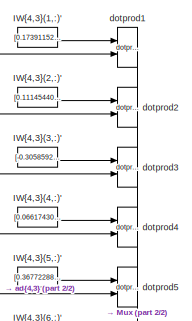
[diagram: Function Fitting Neural Network/Layer 4/LW{4,3} - part 1/2, top center region]
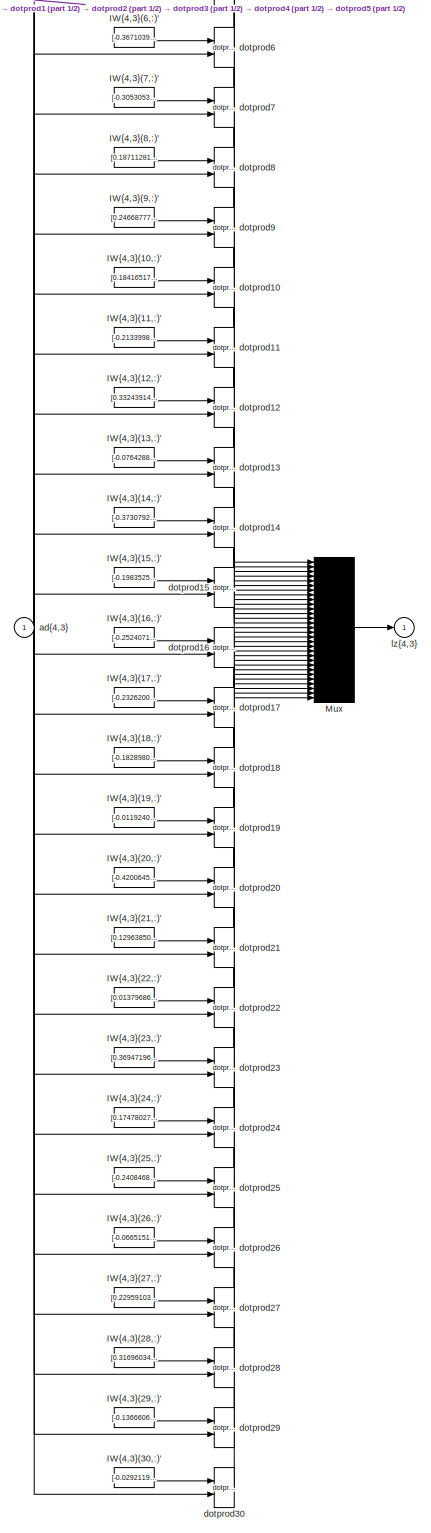
[diagram: Function Fitting Neural Network/Layer 4/LW{4,3} - part 2/2, most of the canvas]
BLOCK [SubSystem] Function Fitting Neural Network/Layer 4/LW{4,3}
  Ports = [1, 1]
  RequestExecContextInheritance = off
BLOCK [Constant] Function Fitting Neural Network/Layer 4/LW{4,3}/IW{4,3}(1,:)'
  Value = [0.173911523451323546396452002227306365966796875;0.420433151599642174200965882846503518521785736083984375;-0.150698485385876990161335697848699055612087249755859375;-0.251790193937140804880669975318596698343753814697265625;0.367494411265376352826450556676718406379222869873046875;-0.50572399719074478952052231761626899242401123046875;-0.479620281978967721858708728177589364349842071533203125;0.1299535...<+1859ch>
BLOCK [Constant] Function Fitting Neural Network/Layer 4/LW{4,3}/IW{4,3}(10,:)'
  Value = [0.184165173912349822149536748838727362453937530517578125;-0.4844111152691865651576108575682155787944793701171875;-0.5931653647242238758252597108366899192333221435546875;-0.3315797062691301366754714763374067842960357666015625;0.368695561518603220907408513085101731121540069580078125;0.04080940956829025301200175590565777383744716644287109375;0.3297636097079397199394179551745764911174774169921875;0.2...<+1869ch>
BLOCK [Constant] Function Fitting Neural Network/Layer 4/LW{4,3}/IW{4,3}(11,:)'
  Value = [-0.2133998195849199086548964032772346399724483489990234375;0.0988837292047087534907490180557942949235439300537109375;0.2888961202265558636526066038641147315502166748046875;0.0778953623533929218059057575374026782810688018798828125;-0.0947938460964662110708189857177785597741603851318359375;-0.26935730787962086640874304066528566181659698486328125;-0.21471551894730458998061806141777196899056434631347...<+1871ch>
BLOCK [Constant] Function Fitting Neural Network/Layer 4/LW{4,3}/IW{4,3}(12,:)'
  Value = [0.332439148975398668373060218073078431189060211181640625;0.402994536605587871935796329125878401100635528564453125;0.62025145203137233007595341405249200761318206787109375;-0.384937076403120082002118351738317869603633880615234375;0.043120060923769909511094056142610497772693634033203125;-0.34047619273281914953344085006392560899257659912109375;0.2463252131655367105356191359533113427460193634033203125...<+1877ch>
BLOCK [Constant] Function Fitting Neural Network/Layer 4/LW{4,3}/IW{4,3}(13,:)'
  Value = [-0.0764288413556958035055544087299495004117488861083984375;-0.293658741521241106742223792025470174849033355712890625;-0.2448715786944200001329363658442161977291107177734375;-0.0291014548285831696483594299706965102814137935638427734375;0.351312833804836077700173291304963640868663787841796875;-0.464273027719947772862241208713385276496410369873046875;-0.1815496235216876863560742094705346971750259399...<+1900ch>
BLOCK [Constant] Function Fitting Neural Network/Layer 4/LW{4,3}/IW{4,3}(14,:)'
  Value = [-0.373079252167674513263051494504907168447971343994140625;0.36525866379556137797379733456182293593883514404296875;0.46569915767990910371310064874705858528614044189453125;0.059858868747500550144824416065603145398199558258056640625;-0.2268810318938203895999805581595865078270435333251953125;-0.1798377445817057884713818793898099102079868316650390625;-0.163166449423128023799023367246263660490512847900...<+1865ch>
BLOCK [Constant] Function Fitting Neural Network/Layer 4/LW{4,3}/IW{4,3}(15,:)'
  Value = [-0.1983525782819461624750800865513156168162822723388671875;0.320591363056154377009221434491337276995182037353515625;0.00902037088462788981535478427531415945850312709808349609375;-0.462476692967956626301173628235119394958019256591796875;0.223093005036383462691418344547855667769908905029296875;0.2477899777618941812296071702803601510822772979736328125;-0.293567577911184485195406068669399246573448181...<+1904ch>
BLOCK [Constant] Function Fitting Neural Network/Layer 4/LW{4,3}/IW{4,3}(16,:)'
  Value = [-0.2524071887236607469873206355259753763675689697265625;-0.38676581216345640168441377682029269635677337646484375;-0.12639380540118005935568135100766085088253021240234375;0.239389142219131711986079835696727968752384185791015625;0.58108299451129130641646725052851252257823944091796875;-0.1382601861038215973476184217361151240766048431396484375;-0.43269729206102758301000221763388253748416900634765625;...<+1923ch>
BLOCK [Constant] Function Fitting Neural Network/Layer 4/LW{4,3}/IW{4,3}(17,:)'
  Value = [-0.232620079691370051921950334872235544025897979736328125;-0.12381245331313418811536308794529759325087070465087890625;-1.5736368311497030969547950007836334407329559326171875;0.288396774478608619585173755694995634257793426513671875;-0.13230997582721382155312994655105285346508026123046875;-0.3945518771457219298071095181512646377086639404296875;0.06779114085319337679180762279429472982883453369140625...<+1885ch>
BLOCK [Constant] Function Fitting Neural Network/Layer 4/LW{4,3}/IW{4,3}(18,:)'
  Value = [-0.182898034032909329038574242076720111072063446044921875;-0.037896997310107434497883360791092854924499988555908203125;0.1789882359105703646395824080173042602837085723876953125;-0.125078615288563010921052409685216844081878662109375;-0.2199099599999892740154194825663580559194087982177734375;0.018876090614156459945860433435882441699504852294921875;-0.222614452438959303792742616678879130631685256958...<+1894ch>
BLOCK [Constant] Function Fitting Neural Network/Layer 4/LW{4,3}/IW{4,3}(19,:)'
  Value = [-0.01192408030454335070291715936718901502899825572967529296875;0.43527937438737496211871302875806577503681182861328125;0.2647285555521765587627669447101652622222900390625;0.1093396246667619198245091638455050997436046600341796875;-0.397567323711217002202289449996897019445896148681640625;0.16129414616281467775849023382761515676975250244140625;0.188450743015614124997725298271689098328351974487304687...<+1866ch>
BLOCK [Constant] Function Fitting Neural Network/Layer 4/LW{4,3}/IW{4,3}(2,:)'
  Value = [0.111454407878638417361827350759995169937610626220703125;0.0892993631453624370220012451682123355567455291748046875;-0.21161812558794201866163575687096454203128814697265625;-0.26186623705984235499499845900572836399078369140625;-0.2231724575220183914847638106948579661548137664794921875;0.1938325755240325187767069792244001291692256927490234375;0.021307652257357593411635221514188742730766534805297851...<+1904ch>
BLOCK [Constant] Function Fitting Neural Network/Layer 4/LW{4,3}/IW{4,3}(20,:)'
  Value = [-0.42006459502517456972014997518272139132022857666015625;0.340291715157604424124571096399449743330478668212890625;-0.41193204220309842522595999980694614350795745849609375;-0.61406875722487053170794979450874961912631988525390625;0.255250868727483037901038187555968761444091796875;-0.49467354785788530957546527133672498166561126708984375;-0.07375328173489988092814684250697609968483448028564453125;-0....<+1866ch>
BLOCK [Constant] Function Fitting Neural Network/Layer 4/LW{4,3}/IW{4,3}(21,:)'
  Value = [0.129638501918145465641174496340681798756122589111328125;0.10696886968774939330462103725949418731033802032470703125;-0.30054878406063867402053801924921572208404541015625;0.2148341613397314053823805579668260179460048675537109375;0.426226064169986484930774395252228714525699615478515625;0.35812542761129384505380812697694636881351470947265625;-0.478978895156310258141019176036934368312358856201171875;...<+1876ch>
BLOCK [Constant] Function Fitting Neural Network/Layer 4/LW{4,3}/IW{4,3}(22,:)'
  Value = [0.01379686480800832067139527481458571855910122394561767578125;0.14961635723678601284092337664333172142505645751953125;-0.471105281093098626765680592143326066434383392333984375;0.4678916138507285271685987027012743055820465087890625;0.5619206751227796559078342397697269916534423828125;0.79432188346070342621629833956831134855747222900390625;0.4581592674103276419117491968791000545024871826171875;0.697...<+1855ch>
BLOCK [Constant] Function Fitting Neural Network/Layer 4/LW{4,3}/IW{4,3}(23,:)'
  Value = [0.36947196184929931295215510544949211180210113525390625;-0.014548263136076079737879496178720728494226932525634765625;0.256146208463054414483650589318131096661090850830078125;0.1574064673218433796364479348994791507720947265625;-1.8257307235977544568328312379890121519565582275390625;-0.21714643681156442500679304430377669632434844970703125;-0.2932825444780087220664199776365421712398529052734375;0.43...<+1858ch>
BLOCK [Constant] Function Fitting Neural Network/Layer 4/LW{4,3}/IW{4,3}(24,:)'
  Value = [0.1747802702977716560184262561961077153682708740234375;0.1788289217723081636624016255154856480658054351806640625;-0.301790630006856297473660788455163128674030303955078125;-0.282829315009133053226975107463658787310123443603515625;-0.63285907980233713221451807839912362396717071533203125;0.389852511213645891441359481177642010152339935302734375;0.029527721081376582384914186718560813460499048233032226...<+1884ch>
BLOCK [Constant] Function Fitting Neural Network/Layer 4/LW{4,3}/IW{4,3}(25,:)'
  Value = [-0.2408468898753135245538459230374428443610668182373046875;0.135724608525294609950861968172830529510974884033203125;-0.2381710476700437395525256079054088331758975982666015625;0.0979530549917435322537784259111504070460796356201171875;0.2396328416078949141709841796910041011869907379150390625;0.1298134336711324887669860572714242152869701385498046875;-0.48399433878487563287507100540096871554851531982...<+1896ch>
BLOCK [Constant] Function Fitting Neural Network/Layer 4/LW{4,3}/IW{4,3}(26,:)'
  Value = [-0.066515187575897749550080106928362511098384857177734375;0.65429436762688542028598703836905770003795623779296875;0.1212617709192357617897783939042710699141025543212890625;-0.307003890263517653647085126067395322024822235107421875;-1.06436336629573791157099549309350550174713134765625;-0.501132096629068879423130056238733232021331787109375;-0.13920708085999911052255129106924869120121002197265625;-0....<+1859ch>
BLOCK [Constant] Function Fitting Neural Network/Layer 4/LW{4,3}/IW{4,3}(27,:)'
  Value = [0.22959103965554650272906656027771532535552978515625;0.248096232202770716757100899485521949827671051025390625;-0.09052331035982115470250874977864441461861133575439453125;-0.36831515867232111904883140596211887896060943603515625;0.110305895607016923865018043215968646109104156494140625;-0.0624862056349631267426758540750597603619098663330078125;0.387031550561865167470187998333130963146686553955078125...<+1900ch>
BLOCK [Constant] Function Fitting Neural Network/Layer 4/LW{4,3}/IW{4,3}(28,:)'
  Value = [0.316960343078602602151505607253056950867176055908203125;0.31709891120402422526325381113565526902675628662109375;-1.386239874786621584235035697929561138153076171875;0.0667988657853266776243117419653572142124176025390625;0.94836017118965754146842073168954811990261077880859375;0.52554204492557421435350306637701578438282012939453125;0.1504106701835765946828615824415464885532855987548828125;-0.622056...<+1873ch>
BLOCK [Constant] Function Fitting Neural Network/Layer 4/LW{4,3}/IW{4,3}(29,:)'
  Value = [-0.13666066532430332092218350226175971329212188720703125;-0.3350592119860456019608818678534589707851409912109375;-0.12345892999703080017415146585335605777800083160400390625;-0.4944024239238731244228119976469315588474273681640625;0.07600445840717177936607384935996378771960735321044921875;0.325138630909185211148582084206282161176204681396484375;-0.308478812341873076530163189090671949088573455810546...<+1903ch>
BLOCK [Constant] Function Fitting Neural Network/Layer 4/LW{4,3}/IW{4,3}(3,:)'
  Value = [-0.30585925269158653616585752388346008956432342529296875;-0.11370781071762610381359337452522595413029193878173828125;-0.288995072779456296796496417300659231841564178466796875;-0.2087004458526735273249386182214948348701000213623046875;0.11786172018755369794718035336700268089771270751953125;-0.415389366575441731921358723411685787141323089599609375;0.0961937013401414908742026455001905560493469238281...<+1912ch>
BLOCK [Constant] Function Fitting Neural Network/Layer 4/LW{4,3}/IW{4,3}(30,:)'
  Value = [-0.029211902771673951828557136423114570789039134979248046875;0.44569594540284185324452437271247617900371551513671875;-0.27423082656662567391236962066614069044589996337890625;0.1741126326807787005890304499189369380474090576171875;-0.460860339971452981355781730599119327962398529052734375;0.1918314936851981677978784546212409622967243194580078125;-0.227223438120338766532668728359567467123270034790039...<+1898ch>
BLOCK [Constant] Function Fitting Neural Network/Layer 4/LW{4,3}/IW{4,3}(4,:)'
  Value = [0.066174301445019789724710790324024856090545654296875;0.8437889578945014790178902330808341503143310546875;0.95906436263279959408833974521257914602756500244140625;-1.1849327373347620095955790020525455474853515625;-0.48804743783691773018063031486235558986663818359375;1.007144563640442580521039417362771928310394287109375;1.072048883728494939049369349959306418895721435546875;0.23298385925275694185998...<+1832ch>
BLOCK [Constant] Function Fitting Neural Network/Layer 4/LW{4,3}/IW{4,3}(5,:)'
  Value = [0.367722882968511799450794796939590014517307281494140625;-0.267706484578947800923032218634034506976604461669921875;0.04915260201634784331670147139448090456426143646240234375;-0.034683897773466566827327284272541874088346958160400390625;0.119334857179803910387505538892582990229129791259765625;0.1454234535045438037048626256364514119923114776611328125;0.33784556315219144151384966789919417351484298706...<+1903ch>
BLOCK [Constant] Function Fitting Neural Network/Layer 4/LW{4,3}/IW{4,3}(6,:)'
  Value = [-0.367103992561354230961256916998536325991153717041015625;-0.07154293187888864646861719620574149303138256072998046875;-0.3286543258723646498964399143005721271038055419921875;-0.1956376418600999922414729326192173175513744354248046875;-0.353510345295510786112203049924573861062526702880859375;-0.5146809581512794551372280693612992763519287109375;0.30949652779526692913947272245422936975955963134765625...<+1891ch>
BLOCK [Constant] Function Fitting Neural Network/Layer 4/LW{4,3}/IW{4,3}(7,:)'
  Value = [-0.305305332430271747501393519996781833469867706298828125;-0.1201741567447626446440978043028735555708408355712890625;0.456180373739721201076235956861637532711029052734375;-0.001362227005496157057617967467422204208560287952423095703125;0.22827814968939463824426638893783092498779296875;0.9583030005278814211777671516756527125835418701171875;-0.199397589064924385393595684945466928184032440185546875;0...<+1878ch>
BLOCK [Constant] Function Fitting Neural Network/Layer 4/LW{4,3}/IW{4,3}(8,:)'
  Value = [0.187112816862455677568988221537438221275806427001953125;0.2209952851520229355486435451894067227840423583984375;-0.42708444735085093757476215614587999880313873291015625;-0.31603452083324745647274767179624177515506744384765625;0.3906448575625007801903620929806493222713470458984375;0.427688946185577678615885588442324660718441009521484375;0.30300188013046469581723840747145004570484161376953125;-0.17...<+1876ch>
BLOCK [Constant] Function Fitting Neural Network/Layer 4/LW{4,3}/IW{4,3}(9,:)'
  Value = [0.246687778356103393218035080280969850718975067138671875;-0.349341164118015468087463659685454331338405609130859375;0.34862997072966950273809061400243081152439117431640625;0.2760288216530237814794190853717736899852752685546875;-0.962877036226848392885813154862262308597564697265625;-0.11223881463977587735758589815304731018841266632080078125;-0.348385991730658262088837773262639530003070831298828125;...<+1907ch>
BLOCK [Mux] Function Fitting Neural Network/Layer 4/LW{4,3}/Mux
  Inputs = 30
  Ports = [30, 1]
BLOCK [Inport] Function Fitting Neural Network/Layer 4/LW{4,3}/ad{4,3}
  IconDisplay = Port number
  PortDimensions = 40
BLOCK [Reference] Function Fitting Neural Network/Layer 4/LW{4,3}/dotprod1  REF=neural/Weight Functions/dotprod
  Ports = [2, 1]
  SourceBlock = neural/Weight Functions/dotprod
  SourceProductBaseCode = NN
  SourceProductName = Neural Network Toolbox
  SourceType = DOTPROD
BLOCK [Reference] Function Fitting Neural Network/Layer 4/LW{4,3}/dotprod10  REF=neural/Weight Functions/dotprod
  Ports = [2, 1]
  SourceBlock = neural/Weight Functions/dotprod
  SourceProductBaseCode = NN
  SourceProductName = Neural Network Toolbox
  SourceType = DOTPROD
BLOCK [Reference] Function Fitting Neural Network/Layer 4/LW{4,3}/dotprod11  REF=neural/Weight Functions/dotprod
  Ports = [2, 1]
  SourceBlock = neural/Weight Functions/dotprod
  SourceProductBaseCode = NN
  SourceProductName = Neural Network Toolbox
  SourceType = DOTPROD
BLOCK [Reference] Function Fitting Neural Network/Layer 4/LW{4,3}/dotprod12  REF=neural/Weight Functions/dotprod
  Ports = [2, 1]
  SourceBlock = neural/Weight Functions/dotprod
  SourceProductBaseCode = NN
  SourceProductName = Neural Network Toolbox
  SourceType = DOTPROD
BLOCK [Reference] Function Fitting Neural Network/Layer 4/LW{4,3}/dotprod13  REF=neural/Weight Functions/dotprod
  Ports = [2, 1]
  SourceBlock = neural/Weight Functions/dotprod
  SourceProductBaseCode = NN
  SourceProductName = Neural Network Toolbox
  SourceType = DOTPROD
BLOCK [Reference] Function Fitting Neural Network/Layer 4/LW{4,3}/dotprod14  REF=neural/Weight Functions/dotprod
  Ports = [2, 1]
  SourceBlock = neural/Weight Functions/dotprod
  SourceProductBaseCode = NN
  SourceProductName = Neural Network Toolbox
  SourceType = DOTPROD
BLOCK [Reference] Function Fitting Neural Network/Layer 4/LW{4,3}/dotprod15  REF=neural/Weight Functions/dotprod
  Ports = [2, 1]
  SourceBlock = neural/Weight Functions/dotprod
  SourceProductBaseCode = NN
  SourceProductName = Neural Network Toolbox
  SourceType = DOTPROD
BLOCK [Reference] Function Fitting Neural Network/Layer 4/LW{4,3}/dotprod16  REF=neural/Weight Functions/dotprod
  Ports = [2, 1]
  SourceBlock = neural/Weight Functions/dotprod
  SourceProductBaseCode = NN
  SourceProductName = Neural Network Toolbox
  SourceType = DOTPROD
BLOCK [Reference] Function Fitting Neural Network/Layer 4/LW{4,3}/dotprod17  REF=neural/Weight Functions/dotprod
  Ports = [2, 1]
  SourceBlock = neural/Weight Functions/dotprod
  SourceProductBaseCode = NN
  SourceProductName = Neural Network Toolbox
  SourceType = DOTPROD
BLOCK [Reference] Function Fitting Neural Network/Layer 4/LW{4,3}/dotprod18  REF=neural/Weight Functions/dotprod
  Ports = [2, 1]
  SourceBlock = neural/Weight Functions/dotprod
  SourceProductBaseCode = NN
  SourceProductName = Neural Network Toolbox
  SourceType = DOTPROD
BLOCK [Reference] Function Fitting Neural Network/Layer 4/LW{4,3}/dotprod19  REF=neural/Weight Functions/dotprod
  Ports = [2, 1]
  SourceBlock = neural/Weight Functions/dotprod
  SourceProductBaseCode = NN
  SourceProductName = Neural Network Toolbox
  SourceType = DOTPROD
BLOCK [Reference] Function Fitting Neural Network/Layer 4/LW{4,3}/dotprod2  REF=neural/Weight Functions/dotprod
  Ports = [2, 1]
  SourceBlock = neural/Weight Functions/dotprod
  SourceProductBaseCode = NN
  SourceProductName = Neural Network Toolbox
  SourceType = DOTPROD
BLOCK [Reference] Function Fitting Neural Network/Layer 4/LW{4,3}/dotprod20  REF=neural/Weight Functions/dotprod
  Ports = [2, 1]
  SourceBlock = neural/Weight Functions/dotprod
  SourceProductBaseCode = NN
  SourceProductName = Neural Network Toolbox
  SourceType = DOTPROD
BLOCK [Reference] Function Fitting Neural Network/Layer 4/LW{4,3}/dotprod21  REF=neural/Weight Functions/dotprod
  Ports = [2, 1]
  SourceBlock = neural/Weight Functions/dotprod
  SourceProductBaseCode = NN
  SourceProductName = Neural Network Toolbox
  SourceType = DOTPROD
BLOCK [Reference] Function Fitting Neural Network/Layer 4/LW{4,3}/dotprod22  REF=neural/Weight Functions/dotprod
  Ports = [2, 1]
  SourceBlock = neural/Weight Functions/dotprod
  SourceProductBaseCode = NN
  SourceProductName = Neural Network Toolbox
  SourceType = DOTPROD
BLOCK [Reference] Function Fitting Neural Network/Layer 4/LW{4,3}/dotprod23  REF=neural/Weight Functions/dotprod
  Ports = [2, 1]
  SourceBlock = neural/Weight Functions/dotprod
  SourceProductBaseCode = NN
  SourceProductName = Neural Network Toolbox
  SourceType = DOTPROD
BLOCK [Reference] Function Fitting Neural Network/Layer 4/LW{4,3}/dotprod24  REF=neural/Weight Functions/dotprod
  Ports = [2, 1]
  SourceBlock = neural/Weight Functions/dotprod
  SourceProductBaseCode = NN
  SourceProductName = Neural Network Toolbox
  SourceType = DOTPROD
BLOCK [Reference] Function Fitting Neural Network/Layer 4/LW{4,3}/dotprod25  REF=neural/Weight Functions/dotprod
  Ports = [2, 1]
  SourceBlock = neural/Weight Functions/dotprod
  SourceProductBaseCode = NN
  SourceProductName = Neural Network Toolbox
  SourceType = DOTPROD
BLOCK [Reference] Function Fitting Neural Network/Layer 4/LW{4,3}/dotprod26  REF=neural/Weight Functions/dotprod
  Ports = [2, 1]
  SourceBlock = neural/Weight Functions/dotprod
  SourceProductBaseCode = NN
  SourceProductName = Neural Network Toolbox
  SourceType = DOTPROD
BLOCK [Reference] Function Fitting Neural Network/Layer 4/LW{4,3}/dotprod27  REF=neural/Weight Functions/dotprod
  Ports = [2, 1]
  SourceBlock = neural/Weight Functions/dotprod
  SourceProductBaseCode = NN
  SourceProductName = Neural Network Toolbox
  SourceType = DOTPROD
BLOCK [Reference] Function Fitting Neural Network/Layer 4/LW{4,3}/dotprod28  REF=neural/Weight Functions/dotprod
  Ports = [2, 1]
  SourceBlock = neural/Weight Functions/dotprod
  SourceProductBaseCode = NN
  SourceProductName = Neural Network Toolbox
  SourceType = DOTPROD
BLOCK [Reference] Function Fitting Neural Network/Layer 4/LW{4,3}/dotprod29  REF=neural/Weight Functions/dotprod
  Ports = [2, 1]
  SourceBlock = neural/Weight Functions/dotprod
  SourceProductBaseCode = NN
  SourceProductName = Neural Network Toolbox
  SourceType = DOTPROD
BLOCK [Reference] Function Fitting Neural Network/Layer 4/LW{4,3}/dotprod3  REF=neural/Weight Functions/dotprod
  Ports = [2, 1]
  SourceBlock = neural/Weight Functions/dotprod
  SourceProductBaseCode = NN
  SourceProductName = Neural Network Toolbox
  SourceType = DOTPROD
BLOCK [Reference] Function Fitting Neural Network/Layer 4/LW{4,3}/dotprod30  REF=neural/Weight Functions/dotprod
  Ports = [2, 1]
  SourceBlock = neural/Weight Functions/dotprod
  SourceProductBaseCode = NN
  SourceProductName = Neural Network Toolbox
  SourceType = DOTPROD
BLOCK [Reference] Function Fitting Neural Network/Layer 4/LW{4,3}/dotprod4  REF=neural/Weight Functions/dotprod
  Ports = [2, 1]
  SourceBlock = neural/Weight Functions/dotprod
  SourceProductBaseCode = NN
  SourceProductName = Neural Network Toolbox
  SourceType = DOTPROD
BLOCK [Reference] Function Fitting Neural Network/Layer 4/LW{4,3}/dotprod5  REF=neural/Weight Functions/dotprod
  Ports = [2, 1]
  SourceBlock = neural/Weight Functions/dotprod
  SourceProductBaseCode = NN
  SourceProductName = Neural Network Toolbox
  SourceType = DOTPROD
BLOCK [Reference] Function Fitting Neural Network/Layer 4/LW{4,3}/dotprod6  REF=neural/Weight Functions/dotprod
  Ports = [2, 1]
  SourceBlock = neural/Weight Functions/dotprod
  SourceProductBaseCode = NN
  SourceProductName = Neural Network Toolbox
  SourceType = DOTPROD
BLOCK [Reference] Function Fitting Neural Network/Layer 4/LW{4,3}/dotprod7  REF=neural/Weight Functions/dotprod
  Ports = [2, 1]
  SourceBlock = neural/Weight Functions/dotprod
  SourceProductBaseCode = NN
  SourceProductName = Neural Network Toolbox
  SourceType = DOTPROD
BLOCK [Reference] Function Fitting Neural Network/Layer 4/LW{4,3}/dotprod8  REF=neural/Weight Functions/dotprod
  Ports = [2, 1]
  SourceBlock = neural/Weight Functions/dotprod
  SourceProductBaseCode = NN
  SourceProductName = Neural Network Toolbox
  SourceType = DOTPROD
BLOCK [Reference] Function Fitting Neural Network/Layer 4/LW{4,3}/dotprod9  REF=neural/Weight Functions/dotprod
  Ports = [2, 1]
  SourceBlock = neural/Weight Functions/dotprod
  SourceProductBaseCode = NN
  SourceProductName = Neural Network Toolbox
  SourceType = DOTPROD
BLOCK [Outport] Function Fitting Neural Network/Layer 4/LW{4,3}/lz{4,3}
  IconDisplay = Port number
BLOCK [Inport] Function Fitting Neural Network/Layer 4/a{3} 
  IconDisplay = Port number
  PortDimensions = 40
BLOCK [Outport] Function Fitting Neural Network/Layer 4/a{4}
  IconDisplay = Port number
  InitialOutput = [0;0;0;0;0;0;0;0;0;0;0;0;0;0;0;0;0;0;0;0;0;0;0;0;0;0;0;0;0;0]
BLOCK [Constant] Function Fitting Neural Network/Layer 4/b{4}
  Value = [-1.5834462799896105167363202781416475772857666015625;-1.4131681738915542467793784453533589839935302734375;1.3102528570259537321618381611187942326068878173828125;-0.82672874053146816475390323830652050673961639404296875;-1.180406918711034425228945110575295984745025634765625;1.0971806684954599209191883346647955477237701416015625;0.899521379934129949873522491543553769588470458984375;-0.71477342491139...<+1283ch>
BLOCK [Sum] Function Fitting Neural Network/Layer 4/netsum
  Inputs = 2
  Ports = [2, 1]
BLOCK [Reference] Function Fitting Neural Network/Layer 4/tansig  REF=neural/Transfer Functions/tansig
  Ports = [1, 1]
  SourceBlock = neural/Transfer Functions/tansig
  SourceProductBaseCode = NN
  SourceProductName = Neural Network Toolbox
  SourceType = TANSIG
BLOCK [SubSystem] Function Fitting Neural Network/Layer 5
  Ports = [1, 1]
  RequestExecContextInheritance = off
BLOCK [SubSystem] Function Fitting Neural Network/Layer 5/Delays 1
  Ports = [1, 1]
  RequestExecContextInheritance = off
BLOCK [Mux] Function Fitting Neural Network/Layer 5/Delays 1/mux
  Inputs = 1
  Ports = [1, 1]
BLOCK [Outport] Function Fitting Neural Network/Layer 5/Delays 1/pd{5,4}
  IconDisplay = Port number
BLOCK [Inport] Function Fitting Neural Network/Layer 5/Delays 1/p{5}
  IconDisplay = Port number
  PortDimensions = 30
BLOCK [SubSystem] Function Fitting Neural Network/Layer 5/LW{5,4}
  Ports = [1, 1]
  RequestExecContextInheritance = off
BLOCK [Constant] Function Fitting Neural Network/Layer 5/LW{5,4}/IW{5,4}(1,:)'
  Value = [-2.501222143142079357147622431511990725994110107421875;0.1210791432119102395414955708474735729396343231201171875;0.27005541785252995534705178215517662465572357177734375;-1.868458824258600881051961550838313996791839599609375;0.75285922039936448157959603122435510158538818359375;-0.92337170562431503118006048680399544537067413330078125;-2.12443624053512092331175153958611190319061279296875;1.851419977...<+1249ch>
BLOCK [Mux] Function Fitting Neural Network/Layer 5/LW{5,4}/Mux
  Inputs = 1
  Ports = [1, 1]
BLOCK [Inport] Function Fitting Neural Network/Layer 5/LW{5,4}/ad{5,4}
  IconDisplay = Port number
  PortDimensions = 30
BLOCK [Reference] Function Fitting Neural Network/Layer 5/LW{5,4}/dotprod1  REF=neural/Weight Functions/dotprod
  Ports = [2, 1]
  SourceBlock = neural/Weight Functions/dotprod
  SourceProductBaseCode = NN
  SourceProductName = Neural Network Toolbox
  SourceType = DOTPROD
BLOCK [Outport] Function Fitting Neural Network/Layer 5/LW{5,4}/lz{5,4}
  IconDisplay = Port number
BLOCK [Inport] Function Fitting Neural Network/Layer 5/a{4} 
  IconDisplay = Port number
  PortDimensions = 30
BLOCK [Outport] Function Fitting Neural Network/Layer 5/a{5}
  IconDisplay = Port number
  InitialOutput = 0
BLOCK [Constant] Function Fitting Neural Network/Layer 5/b{5}
  Value = 0.0346166841762956256633998464167234487831592559814453125
BLOCK [Sum] Function Fitting Neural Network/Layer 5/netsum
  Inputs = 2
  Ports = [2, 1]
BLOCK [Reference] Function Fitting Neural Network/Layer 5/purelin  REF=neural/Transfer Functions/purelin
  Ports = [1, 1]
  SourceBlock = neural/Transfer Functions/purelin
  SourceProductBaseCode = NN
  SourceProductName = Neural Network Toolbox
  SourceType = PURELIN
BLOCK [Outport] Function Fitting Neural Network/Output
  IconDisplay = Port number
  InitialOutput = 0
BLOCK [SubSystem] Function Fitting Neural Network/Process Input 1
  Ports = [1, 1]
  RequestExecContextInheritance = off
BLOCK [Reference] Function Fitting Neural Network/Process Input 1/mapminmax  REF=neural/Processing Functions/mapminmax
  Ports = [1, 1]
  SourceBlock = neural/Processing Functions/mapminmax
  SourceProductBaseCode = NN
  SourceProductName = Neural Network Toolbox
  SourceType = MAPMINMAX Preprocess
BLOCK [Outport] Function Fitting Neural Network/Process Input 1/p
  IconDisplay = Port number
  PortDimensions = 7
BLOCK [Inport] Function Fitting Neural Network/Process Input 1/x
  IconDisplay = Port number
  PortDimensions = 7
BLOCK [SubSystem] Function Fitting Neural Network/Process Output 1
  Ports = [1, 1]
  RequestExecContextInheritance = off
BLOCK [Inport] Function Fitting Neural Network/Process Output 1/a
  IconDisplay = Port number
  PortDimensions = 1
BLOCK [Reference] Function Fitting Neural Network/Process Output 1/mapminmax_reverse  REF=neural/Processing Functions/mapminmax_reverse
  Ports = [1, 1]
  SourceBlock = neural/Processing Functions/mapminmax_reverse
  SourceProductBaseCode = NN
  SourceProductName = Neural Network Toolbox
  SourceType = MAPMINMAX Reverse Process
BLOCK [Outport] Function Fitting Neural Network/Process Output 1/y
  IconDisplay = Port number
  PortDimensions = 1
BLOCK [Goto] Function Fitting Neural Network/a{1}
  GotoTag = feedback1
BLOCK [Goto] Function Fitting Neural Network/a{2}
  GotoTag = feedback2
BLOCK [Goto] Function Fitting Neural Network/a{3}
  GotoTag = feedback3
BLOCK [Goto] Function Fitting Neural Network/a{4}
  GotoTag = feedback4
BLOCK [Constant] x1
  SampleTime = 1
  Value = [0.62;0.98;0.65;0.72;0.3;0.48;0.0058]
BLOCK [Scope] y1
  Floating = off
  NumInputPorts = 1
  Ports = [1]
LINE Function Fitting Neural Network/ a{1} :1 -> Function Fitting Neural Network/Layer 2:1
LINE Function Fitting Neural Network/ a{2} :1 -> Function Fitting Neural Network/Layer 3:1
LINE Function Fitting Neural Network/ a{3} :1 -> Function Fitting Neural Network/Layer 4:1
LINE Function Fitting Neural Network/ a{4} :1 -> Function Fitting Neural Network/Layer 5:1
LINE Function Fitting Neural Network/Input:1 -> Function Fitting Neural Network/Process Input 1:1
LINE Function Fitting Neural Network/Layer 1/Delays 1/mux:1 -> Function Fitting Neural Network/Layer 1/Delays 1/pd{1,1}:1
LINE Function Fitting Neural Network/Layer 1/Delays 1/p{1}:1 -> Function Fitting Neural Network/Layer 1/Delays 1/mux:1
LINE Function Fitting Neural Network/Layer 1/Delays 1:1 -> Function Fitting Neural Network/Layer 1/IW{1,1}:1
LINE Function Fitting Neural Network/Layer 1/IW{1,1}/IW{1,1}(1,:)':1 -> Function Fitting Neural Network/Layer 1/IW{1,1}/dotprod1:1
LINE Function Fitting Neural Network/Layer 1/IW{1,1}/IW{1,1}(10,:)':1 -> Function Fitting Neural Network/Layer 1/IW{1,1}/dotprod10:1
LINE Function Fitting Neural Network/Layer 1/IW{1,1}/IW{1,1}(11,:)':1 -> Function Fitting Neural Network/Layer 1/IW{1,1}/dotprod11:1
LINE Function Fitting Neural Network/Layer 1/IW{1,1}/IW{1,1}(12,:)':1 -> Function Fitting Neural Network/Layer 1/IW{1,1}/dotprod12:1
LINE Function Fitting Neural Network/Layer 1/IW{1,1}/IW{1,1}(13,:)':1 -> Function Fitting Neural Network/Layer 1/IW{1,1}/dotprod13:1
LINE Function Fitting Neural Network/Layer 1/IW{1,1}/IW{1,1}(14,:)':1 -> Function Fitting Neural Network/Layer 1/IW{1,1}/dotprod14:1
LINE Function Fitting Neural Network/Layer 1/IW{1,1}/IW{1,1}(15,:)':1 -> Function Fitting Neural Network/Layer 1/IW{1,1}/dotprod15:1
LINE Function Fitting Neural Network/Layer 1/IW{1,1}/IW{1,1}(2,:)':1 -> Function Fitting Neural Network/Layer 1/IW{1,1}/dotprod2:1
LINE Function Fitting Neural Network/Layer 1/IW{1,1}/IW{1,1}(3,:)':1 -> Function Fitting Neural Network/Layer 1/IW{1,1}/dotprod3:1
LINE Function Fitting Neural Network/Layer 1/IW{1,1}/IW{1,1}(4,:)':1 -> Function Fitting Neural Network/Layer 1/IW{1,1}/dotprod4:1
LINE Function Fitting Neural Network/Layer 1/IW{1,1}/IW{1,1}(5,:)':1 -> Function Fitting Neural Network/Layer 1/IW{1,1}/dotprod5:1
LINE Function Fitting Neural Network/Layer 1/IW{1,1}/IW{1,1}(6,:)':1 -> Function Fitting Neural Network/Layer 1/IW{1,1}/dotprod6:1
LINE Function Fitting Neural Network/Layer 1/IW{1,1}/IW{1,1}(7,:)':1 -> Function Fitting Neural Network/Layer 1/IW{1,1}/dotprod7:1
LINE Function Fitting Neural Network/Layer 1/IW{1,1}/IW{1,1}(8,:)':1 -> Function Fitting Neural Network/Layer 1/IW{1,1}/dotprod8:1
LINE Function Fitting Neural Network/Layer 1/IW{1,1}/IW{1,1}(9,:)':1 -> Function Fitting Neural Network/Layer 1/IW{1,1}/dotprod9:1
LINE Function Fitting Neural Network/Layer 1/IW{1,1}/Mux:1 -> Function Fitting Neural Network/Layer 1/IW{1,1}/iz{1,1}:1
LINE Function Fitting Neural Network/Layer 1/IW{1,1}/dotprod10:1 -> Function Fitting Neural Network/Layer 1/IW{1,1}/Mux:10
LINE Function Fitting Neural Network/Layer 1/IW{1,1}/dotprod11:1 -> Function Fitting Neural Network/Layer 1/IW{1,1}/Mux:11
LINE Function Fitting Neural Network/Layer 1/IW{1,1}/dotprod12:1 -> Function Fitting Neural Network/Layer 1/IW{1,1}/Mux:12
LINE Function Fitting Neural Network/Layer 1/IW{1,1}/dotprod13:1 -> Function Fitting Neural Network/Layer 1/IW{1,1}/Mux:13
LINE Function Fitting Neural Network/Layer 1/IW{1,1}/dotprod14:1 -> Function Fitting Neural Network/Layer 1/IW{1,1}/Mux:14
LINE Function Fitting Neural Network/Layer 1/IW{1,1}/dotprod15:1 -> Function Fitting Neural Network/Layer 1/IW{1,1}/Mux:15
LINE Function Fitting Neural Network/Layer 1/IW{1,1}/dotprod1:1 -> Function Fitting Neural Network/Layer 1/IW{1,1}/Mux:1
LINE Function Fitting Neural Network/Layer 1/IW{1,1}/dotprod2:1 -> Function Fitting Neural Network/Layer 1/IW{1,1}/Mux:2
LINE Function Fitting Neural Network/Layer 1/IW{1,1}/dotprod3:1 -> Function Fitting Neural Network/Layer 1/IW{1,1}/Mux:3
LINE Function Fitting Neural Network/Layer 1/IW{1,1}/dotprod4:1 -> Function Fitting Neural Network/Layer 1/IW{1,1}/Mux:4
LINE Function Fitting Neural Network/Layer 1/IW{1,1}/dotprod5:1 -> Function Fitting Neural Network/Layer 1/IW{1,1}/Mux:5
LINE Function Fitting Neural Network/Layer 1/IW{1,1}/dotprod6:1 -> Function Fitting Neural Network/Layer 1/IW{1,1}/Mux:6
LINE Function Fitting Neural Network/Layer 1/IW{1,1}/dotprod7:1 -> Function Fitting Neural Network/Layer 1/IW{1,1}/Mux:7
LINE Function Fitting Neural Network/Layer 1/IW{1,1}/dotprod8:1 -> Function Fitting Neural Network/Layer 1/IW{1,1}/Mux:8
LINE Function Fitting Neural Network/Layer 1/IW{1,1}/dotprod9:1 -> Function Fitting Neural Network/Layer 1/IW{1,1}/Mux:9
NET Function Fitting Neural Network/Layer 1/IW{1,1}/pd{1,1}:1 -> Function Fitting Neural Network/Layer 1/IW{1,1}/dotprod10:2, Function Fitting Neural Network/Layer 1/IW{1,1}/dotprod11:2, Function Fitting Neural Network/Layer 1/IW{1,1}/dotprod12:2, Function Fitting Neural Network/Layer 1/IW{1,1}/dotprod13:2, Function Fitting Neural Network/Layer 1/IW{1,1}/dotprod14:2, Function Fitting Neural Network/Layer 1/IW{1,1}/dotprod15:2, Function Fitting Neural Network/Layer 1/IW{1,1}/dotprod1:2, Function Fitting Neural Network/Layer 1/IW{1,1}/dotprod2:2, Function Fitting Neural Network/Layer 1/IW{1,1}/dotprod3:2, Function Fitting Neural Network/Layer 1/IW{1,1}/dotprod4:2, Function Fitting Neural Network/Layer 1/IW{1,1}/dotprod5:2, Function Fitting Neural Network/Layer 1/IW{1,1}/dotprod6:2, Function Fitting Neural Network/Layer 1/IW{1,1}/dotprod7:2, Function Fitting Neural Network/Layer 1/IW{1,1}/dotprod8:2, Function Fitting Neural Network/Layer 1/IW{1,1}/dotprod9:2
LINE Function Fitting Neural Network/Layer 1/IW{1,1}:1 -> Function Fitting Neural Network/Layer 1/netsum:1
LINE Function Fitting Neural Network/Layer 1/b{1}:1 -> Function Fitting Neural Network/Layer 1/netsum:2
LINE Function Fitting Neural Network/Layer 1/netsum:1 -> Function Fitting Neural Network/Layer 1/tansig:1
LINE Function Fitting Neural Network/Layer 1/p{1}:1 -> Function Fitting Neural Network/Layer 1/Delays 1:1
LINE Function Fitting Neural Network/Layer 1/tansig:1 -> Function Fitting Neural Network/Layer 1/a{1}:1
LINE Function Fitting Neural Network/Layer 1:1 -> Function Fitting Neural Network/a{1}:1
LINE Function Fitting Neural Network/Layer 2/Delays 1/mux:1 -> Function Fitting Neural Network/Layer 2/Delays 1/pd{2,1}:1
LINE Function Fitting Neural Network/Layer 2/Delays 1/p{2}:1 -> Function Fitting Neural Network/Layer 2/Delays 1/mux:1
LINE Function Fitting Neural Network/Layer 2/Delays 1:1 -> Function Fitting Neural Network/Layer 2/LW{2,1}:1
LINE Function Fitting Neural Network/Layer 2/LW{2,1}/IW{2,1}(1,:)':1 -> Function Fitting Neural Network/Layer 2/LW{2,1}/dotprod1:1
LINE Function Fitting Neural Network/Layer 2/LW{2,1}/IW{2,1}(10,:)':1 -> Function Fitting Neural Network/Layer 2/LW{2,1}/dotprod10:1
LINE Function Fitting Neural Network/Layer 2/LW{2,1}/IW{2,1}(11,:)':1 -> Function Fitting Neural Network/Layer 2/LW{2,1}/dotprod11:1
LINE Function Fitting Neural Network/Layer 2/LW{2,1}/IW{2,1}(12,:)':1 -> Function Fitting Neural Network/Layer 2/LW{2,1}/dotprod12:1
LINE Function Fitting Neural Network/Layer 2/LW{2,1}/IW{2,1}(13,:)':1 -> Function Fitting Neural Network/Layer 2/LW{2,1}/dotprod13:1
LINE Function Fitting Neural Network/Layer 2/LW{2,1}/IW{2,1}(14,:)':1 -> Function Fitting Neural Network/Layer 2/LW{2,1}/dotprod14:1
LINE Function Fitting Neural Network/Layer 2/LW{2,1}/IW{2,1}(15,:)':1 -> Function Fitting Neural Network/Layer 2/LW{2,1}/dotprod15:1
LINE Function Fitting Neural Network/Layer 2/LW{2,1}/IW{2,1}(16,:)':1 -> Function Fitting Neural Network/Layer 2/LW{2,1}/dotprod16:1
LINE Function Fitting Neural Network/Layer 2/LW{2,1}/IW{2,1}(17,:)':1 -> Function Fitting Neural Network/Layer 2/LW{2,1}/dotprod17:1
LINE Function Fitting Neural Network/Layer 2/LW{2,1}/IW{2,1}(18,:)':1 -> Function Fitting Neural Network/Layer 2/LW{2,1}/dotprod18:1
LINE Function Fitting Neural Network/Layer 2/LW{2,1}/IW{2,1}(19,:)':1 -> Function Fitting Neural Network/Layer 2/LW{2,1}/dotprod19:1
LINE Function Fitting Neural Network/Layer 2/LW{2,1}/IW{2,1}(2,:)':1 -> Function Fitting Neural Network/Layer 2/LW{2,1}/dotprod2:1
LINE Function Fitting Neural Network/Layer 2/LW{2,1}/IW{2,1}(20,:)':1 -> Function Fitting Neural Network/Layer 2/LW{2,1}/dotprod20:1
LINE Function Fitting Neural Network/Layer 2/LW{2,1}/IW{2,1}(3,:)':1 -> Function Fitting Neural Network/Layer 2/LW{2,1}/dotprod3:1
LINE Function Fitting Neural Network/Layer 2/LW{2,1}/IW{2,1}(4,:)':1 -> Function Fitting Neural Network/Layer 2/LW{2,1}/dotprod4:1
LINE Function Fitting Neural Network/Layer 2/LW{2,1}/IW{2,1}(5,:)':1 -> Function Fitting Neural Network/Layer 2/LW{2,1}/dotprod5:1
LINE Function Fitting Neural Network/Layer 2/LW{2,1}/IW{2,1}(6,:)':1 -> Function Fitting Neural Network/Layer 2/LW{2,1}/dotprod6:1
LINE Function Fitting Neural Network/Layer 2/LW{2,1}/IW{2,1}(7,:)':1 -> Function Fitting Neural Network/Layer 2/LW{2,1}/dotprod7:1
LINE Function Fitting Neural Network/Layer 2/LW{2,1}/IW{2,1}(8,:)':1 -> Function Fitting Neural Network/Layer 2/LW{2,1}/dotprod8:1
LINE Function Fitting Neural Network/Layer 2/LW{2,1}/IW{2,1}(9,:)':1 -> Function Fitting Neural Network/Layer 2/LW{2,1}/dotprod9:1
LINE Function Fitting Neural Network/Layer 2/LW{2,1}/Mux:1 -> Function Fitting Neural Network/Layer 2/LW{2,1}/lz{2,1}:1
NET Function Fitting Neural Network/Layer 2/LW{2,1}/ad{2,1}:1 -> Function Fitting Neural Network/Layer 2/LW{2,1}/dotprod10:2, Function Fitting Neural Network/Layer 2/LW{2,1}/dotprod11:2, Function Fitting Neural Network/Layer 2/LW{2,1}/dotprod12:2, Function Fitting Neural Network/Layer 2/LW{2,1}/dotprod13:2, Function Fitting Neural Network/Layer 2/LW{2,1}/dotprod14:2, Function Fitting Neural Network/Layer 2/LW{2,1}/dotprod15:2, Function Fitting Neural Network/Layer 2/LW{2,1}/dotprod16:2, Function Fitting Neural Network/Layer 2/LW{2,1}/dotprod17:2, Function Fitting Neural Network/Layer 2/LW{2,1}/dotprod18:2, Function Fitting Neural Network/Layer 2/LW{2,1}/dotprod19:2, Function Fitting Neural Network/Layer 2/LW{2,1}/dotprod1:2, Function Fitting Neural Network/Layer 2/LW{2,1}/dotprod20:2, Function Fitting Neural Network/Layer 2/LW{2,1}/dotprod2:2, Function Fitting Neural Network/Layer 2/LW{2,1}/dotprod3:2, Function Fitting Neural Network/Layer 2/LW{2,1}/dotprod4:2, Function Fitting Neural Network/Layer 2/LW{2,1}/dotprod5:2, Function Fitting Neural Network/Layer 2/LW{2,1}/dotprod6:2, Function Fitting Neural Network/Layer 2/LW{2,1}/dotprod7:2, Function Fitting Neural Network/Layer 2/LW{2,1}/dotprod8:2, Function Fitting Neural Network/Layer 2/LW{2,1}/dotprod9:2
LINE Function Fitting Neural Network/Layer 2/LW{2,1}/dotprod10:1 -> Function Fitting Neural Network/Layer 2/LW{2,1}/Mux:10
LINE Function Fitting Neural Network/Layer 2/LW{2,1}/dotprod11:1 -> Function Fitting Neural Network/Layer 2/LW{2,1}/Mux:11
LINE Function Fitting Neural Network/Layer 2/LW{2,1}/dotprod12:1 -> Function Fitting Neural Network/Layer 2/LW{2,1}/Mux:12
LINE Function Fitting Neural Network/Layer 2/LW{2,1}/dotprod13:1 -> Function Fitting Neural Network/Layer 2/LW{2,1}/Mux:13
LINE Function Fitting Neural Network/Layer 2/LW{2,1}/dotprod14:1 -> Function Fitting Neural Network/Layer 2/LW{2,1}/Mux:14
LINE Function Fitting Neural Network/Layer 2/LW{2,1}/dotprod15:1 -> Function Fitting Neural Network/Layer 2/LW{2,1}/Mux:15
LINE Function Fitting Neural Network/Layer 2/LW{2,1}/dotprod16:1 -> Function Fitting Neural Network/Layer 2/LW{2,1}/Mux:16
LINE Function Fitting Neural Network/Layer 2/LW{2,1}/dotprod17:1 -> Function Fitting Neural Network/Layer 2/LW{2,1}/Mux:17
LINE Function Fitting Neural Network/Layer 2/LW{2,1}/dotprod18:1 -> Function Fitting Neural Network/Layer 2/LW{2,1}/Mux:18
LINE Function Fitting Neural Network/Layer 2/LW{2,1}/dotprod19:1 -> Function Fitting Neural Network/Layer 2/LW{2,1}/Mux:19
LINE Function Fitting Neural Network/Layer 2/LW{2,1}/dotprod1:1 -> Function Fitting Neural Network/Layer 2/LW{2,1}/Mux:1
LINE Function Fitting Neural Network/Layer 2/LW{2,1}/dotprod20:1 -> Function Fitting Neural Network/Layer 2/LW{2,1}/Mux:20
LINE Function Fitting Neural Network/Layer 2/LW{2,1}/dotprod2:1 -> Function Fitting Neural Network/Layer 2/LW{2,1}/Mux:2
LINE Function Fitting Neural Network/Layer 2/LW{2,1}/dotprod3:1 -> Function Fitting Neural Network/Layer 2/LW{2,1}/Mux:3
LINE Function Fitting Neural Network/Layer 2/LW{2,1}/dotprod4:1 -> Function Fitting Neural Network/Layer 2/LW{2,1}/Mux:4
LINE Function Fitting Neural Network/Layer 2/LW{2,1}/dotprod5:1 -> Function Fitting Neural Network/Layer 2/LW{2,1}/Mux:5
LINE Function Fitting Neural Network/Layer 2/LW{2,1}/dotprod6:1 -> Function Fitting Neural Network/Layer 2/LW{2,1}/Mux:6
LINE Function Fitting Neural Network/Layer 2/LW{2,1}/dotprod7:1 -> Function Fitting Neural Network/Layer 2/LW{2,1}/Mux:7
LINE Function Fitting Neural Network/Layer 2/LW{2,1}/dotprod8:1 -> Function Fitting Neural Network/Layer 2/LW{2,1}/Mux:8
LINE Function Fitting Neural Network/Layer 2/LW{2,1}/dotprod9:1 -> Function Fitting Neural Network/Layer 2/LW{2,1}/Mux:9
LINE Function Fitting Neural Network/Layer 2/LW{2,1}:1 -> Function Fitting Neural Network/Layer 2/netsum:1
LINE Function Fitting Neural Network/Layer 2/a{1} :1 -> Function Fitting Neural Network/Layer 2/Delays 1:1
LINE Function Fitting Neural Network/Layer 2/b{2}:1 -> Function Fitting Neural Network/Layer 2/netsum:2
LINE Function Fitting Neural Network/Layer 2/netsum:1 -> Function Fitting Neural Network/Layer 2/tansig:1
LINE Function Fitting Neural Network/Layer 2/tansig:1 -> Function Fitting Neural Network/Layer 2/a{2}:1
LINE Function Fitting Neural Network/Layer 2:1 -> Function Fitting Neural Network/a{2}:1
LINE Function Fitting Neural Network/Layer 3/Delays 1/mux:1 -> Function Fitting Neural Network/Layer 3/Delays 1/pd{3,2}:1
LINE Function Fitting Neural Network/Layer 3/Delays 1/p{3}:1 -> Function Fitting Neural Network/Layer 3/Delays 1/mux:1
LINE Function Fitting Neural Network/Layer 3/Delays 1:1 -> Function Fitting Neural Network/Layer 3/LW{3,2}:1
LINE Function Fitting Neural Network/Layer 3/LW{3,2}/IW{3,2}(1,:)':1 -> Function Fitting Neural Network/Layer 3/LW{3,2}/dotprod1:1
LINE Function Fitting Neural Network/Layer 3/LW{3,2}/IW{3,2}(10,:)':1 -> Function Fitting Neural Network/Layer 3/LW{3,2}/dotprod10:1
LINE Function Fitting Neural Network/Layer 3/LW{3,2}/IW{3,2}(11,:)':1 -> Function Fitting Neural Network/Layer 3/LW{3,2}/dotprod11:1
LINE Function Fitting Neural Network/Layer 3/LW{3,2}/IW{3,2}(12,:)':1 -> Function Fitting Neural Network/Layer 3/LW{3,2}/dotprod12:1
LINE Function Fitting Neural Network/Layer 3/LW{3,2}/IW{3,2}(13,:)':1 -> Function Fitting Neural Network/Layer 3/LW{3,2}/dotprod13:1
LINE Function Fitting Neural Network/Layer 3/LW{3,2}/IW{3,2}(14,:)':1 -> Function Fitting Neural Network/Layer 3/LW{3,2}/dotprod14:1
LINE Function Fitting Neural Network/Layer 3/LW{3,2}/IW{3,2}(15,:)':1 -> Function Fitting Neural Network/Layer 3/LW{3,2}/dotprod15:1
LINE Function Fitting Neural Network/Layer 3/LW{3,2}/IW{3,2}(16,:)':1 -> Function Fitting Neural Network/Layer 3/LW{3,2}/dotprod16:1
LINE Function Fitting Neural Network/Layer 3/LW{3,2}/IW{3,2}(17,:)':1 -> Function Fitting Neural Network/Layer 3/LW{3,2}/dotprod17:1
LINE Function Fitting Neural Network/Layer 3/LW{3,2}/IW{3,2}(18,:)':1 -> Function Fitting Neural Network/Layer 3/LW{3,2}/dotprod18:1
LINE Function Fitting Neural Network/Layer 3/LW{3,2}/IW{3,2}(19,:)':1 -> Function Fitting Neural Network/Layer 3/LW{3,2}/dotprod19:1
LINE Function Fitting Neural Network/Layer 3/LW{3,2}/IW{3,2}(2,:)':1 -> Function Fitting Neural Network/Layer 3/LW{3,2}/dotprod2:1
LINE Function Fitting Neural Network/Layer 3/LW{3,2}/IW{3,2}(20,:)':1 -> Function Fitting Neural Network/Layer 3/LW{3,2}/dotprod20:1
LINE Function Fitting Neural Network/Layer 3/LW{3,2}/IW{3,2}(21,:)':1 -> Function Fitting Neural Network/Layer 3/LW{3,2}/dotprod21:1
LINE Function Fitting Neural Network/Layer 3/LW{3,2}/IW{3,2}(22,:)':1 -> Function Fitting Neural Network/Layer 3/LW{3,2}/dotprod22:1
LINE Function Fitting Neural Network/Layer 3/LW{3,2}/IW{3,2}(23,:)':1 -> Function Fitting Neural Network/Layer 3/LW{3,2}/dotprod23:1
LINE Function Fitting Neural Network/Layer 3/LW{3,2}/IW{3,2}(24,:)':1 -> Function Fitting Neural Network/Layer 3/LW{3,2}/dotprod24:1
LINE Function Fitting Neural Network/Layer 3/LW{3,2}/IW{3,2}(25,:)':1 -> Function Fitting Neural Network/Layer 3/LW{3,2}/dotprod25:1
LINE Function Fitting Neural Network/Layer 3/LW{3,2}/IW{3,2}(26,:)':1 -> Function Fitting Neural Network/Layer 3/LW{3,2}/dotprod26:1
LINE Function Fitting Neural Network/Layer 3/LW{3,2}/IW{3,2}(27,:)':1 -> Function Fitting Neural Network/Layer 3/LW{3,2}/dotprod27:1
LINE Function Fitting Neural Network/Layer 3/LW{3,2}/IW{3,2}(28,:)':1 -> Function Fitting Neural Network/Layer 3/LW{3,2}/dotprod28:1
LINE Function Fitting Neural Network/Layer 3/LW{3,2}/IW{3,2}(29,:)':1 -> Function Fitting Neural Network/Layer 3/LW{3,2}/dotprod29:1
LINE Function Fitting Neural Network/Layer 3/LW{3,2}/IW{3,2}(3,:)':1 -> Function Fitting Neural Network/Layer 3/LW{3,2}/dotprod3:1
LINE Function Fitting Neural Network/Layer 3/LW{3,2}/IW{3,2}(30,:)':1 -> Function Fitting Neural Network/Layer 3/LW{3,2}/dotprod30:1
LINE Function Fitting Neural Network/Layer 3/LW{3,2}/IW{3,2}(31,:)':1 -> Function Fitting Neural Network/Layer 3/LW{3,2}/dotprod31:1
LINE Function Fitting Neural Network/Layer 3/LW{3,2}/IW{3,2}(32,:)':1 -> Function Fitting Neural Network/Layer 3/LW{3,2}/dotprod32:1
LINE Function Fitting Neural Network/Layer 3/LW{3,2}/IW{3,2}(33,:)':1 -> Function Fitting Neural Network/Layer 3/LW{3,2}/dotprod33:1
LINE Function Fitting Neural Network/Layer 3/LW{3,2}/IW{3,2}(34,:)':1 -> Function Fitting Neural Network/Layer 3/LW{3,2}/dotprod34:1
LINE Function Fitting Neural Network/Layer 3/LW{3,2}/IW{3,2}(35,:)':1 -> Function Fitting Neural Network/Layer 3/LW{3,2}/dotprod35:1
LINE Function Fitting Neural Network/Layer 3/LW{3,2}/IW{3,2}(36,:)':1 -> Function Fitting Neural Network/Layer 3/LW{3,2}/dotprod36:1
LINE Function Fitting Neural Network/Layer 3/LW{3,2}/IW{3,2}(37,:)':1 -> Function Fitting Neural Network/Layer 3/LW{3,2}/dotprod37:1
LINE Function Fitting Neural Network/Layer 3/LW{3,2}/IW{3,2}(38,:)':1 -> Function Fitting Neural Network/Layer 3/LW{3,2}/dotprod38:1
LINE Function Fitting Neural Network/Layer 3/LW{3,2}/IW{3,2}(39,:)':1 -> Function Fitting Neural Network/Layer 3/LW{3,2}/dotprod39:1
LINE Function Fitting Neural Network/Layer 3/LW{3,2}/IW{3,2}(4,:)':1 -> Function Fitting Neural Network/Layer 3/LW{3,2}/dotprod4:1
LINE Function Fitting Neural Network/Layer 3/LW{3,2}/IW{3,2}(40,:)':1 -> Function Fitting Neural Network/Layer 3/LW{3,2}/dotprod40:1
LINE Function Fitting Neural Network/Layer 3/LW{3,2}/IW{3,2}(5,:)':1 -> Function Fitting Neural Network/Layer 3/LW{3,2}/dotprod5:1
LINE Function Fitting Neural Network/Layer 3/LW{3,2}/IW{3,2}(6,:)':1 -> Function Fitting Neural Network/Layer 3/LW{3,2}/dotprod6:1
LINE Function Fitting Neural Network/Layer 3/LW{3,2}/IW{3,2}(7,:)':1 -> Function Fitting Neural Network/Layer 3/LW{3,2}/dotprod7:1
LINE Function Fitting Neural Network/Layer 3/LW{3,2}/IW{3,2}(8,:)':1 -> Function Fitting Neural Network/Layer 3/LW{3,2}/dotprod8:1
LINE Function Fitting Neural Network/Layer 3/LW{3,2}/IW{3,2}(9,:)':1 -> Function Fitting Neural Network/Layer 3/LW{3,2}/dotprod9:1
LINE Function Fitting Neural Network/Layer 3/LW{3,2}/Mux:1 -> Function Fitting Neural Network/Layer 3/LW{3,2}/lz{3,2}:1
NET Function Fitting Neural Network/Layer 3/LW{3,2}/ad{3,2}:1 -> Function Fitting Neural Network/Layer 3/LW{3,2}/dotprod10:2, Function Fitting Neural Network/Layer 3/LW{3,2}/dotprod11:2, Function Fitting Neural Network/Layer 3/LW{3,2}/dotprod12:2, Function Fitting Neural Network/Layer 3/LW{3,2}/dotprod13:2, Function Fitting Neural Network/Layer 3/LW{3,2}/dotprod14:2, Function Fitting Neural Network/Layer 3/LW{3,2}/dotprod15:2, Function Fitting Neural Network/Layer 3/LW{3,2}/dotprod16:2, Function Fitting Neural Network/Layer 3/LW{3,2}/dotprod17:2, Function Fitting Neural Network/Layer 3/LW{3,2}/dotprod18:2, Function Fitting Neural Network/Layer 3/LW{3,2}/dotprod19:2, Function Fitting Neural Network/Layer 3/LW{3,2}/dotprod1:2, Function Fitting Neural Network/Layer 3/LW{3,2}/dotprod20:2, Function Fitting Neural Network/Layer 3/LW{3,2}/dotprod21:2, Function Fitting Neural Network/Layer 3/LW{3,2}/dotprod22:2, Function Fitting Neural Network/Layer 3/LW{3,2}/dotprod23:2, Function Fitting Neural Network/Layer 3/LW{3,2}/dotprod24:2, Function Fitting Neural Network/Layer 3/LW{3,2}/dotprod25:2, Function Fitting Neural Network/Layer 3/LW{3,2}/dotprod26:2, Function Fitting Neural Network/Layer 3/LW{3,2}/dotprod27:2, Function Fitting Neural Network/Layer 3/LW{3,2}/dotprod28:2, Function Fitting Neural Network/Layer 3/LW{3,2}/dotprod29:2, Function Fitting Neural Network/Layer 3/LW{3,2}/dotprod2:2, Function Fitting Neural Network/Layer 3/LW{3,2}/dotprod30:2, Function Fitting Neural Network/Layer 3/LW{3,2}/dotprod31:2, Function Fitting Neural Network/Layer 3/LW{3,2}/dotprod32:2, Function Fitting Neural Network/Layer 3/LW{3,2}/dotprod33:2, Function Fitting Neural Network/Layer 3/LW{3,2}/dotprod34:2, Function Fitting Neural Network/Layer 3/LW{3,2}/dotprod35:2, Function Fitting Neural Network/Layer 3/LW{3,2}/dotprod36:2, Function Fitting Neural Network/Layer 3/LW{3,2}/dotprod37:2, Function Fitting Neural Network/Layer 3/LW{3,2}/dotprod38:2, Function Fitting Neural Network/Layer 3/LW{3,2}/dotprod39:2, Function Fitting Neural Network/Layer 3/LW{3,2}/dotprod3:2, Function Fitting Neural Network/Layer 3/LW{3,2}/dotprod40:2, Function Fitting Neural Network/Layer 3/LW{3,2}/dotprod4:2, Function Fitting Neural Network/Layer 3/LW{3,2}/dotprod5:2, Function Fitting Neural Network/Layer 3/LW{3,2}/dotprod6:2, Function Fitting Neural Network/Layer 3/LW{3,2}/dotprod7:2, Function Fitting Neural Network/Layer 3/LW{3,2}/dotprod8:2, Function Fitting Neural Network/Layer 3/LW{3,2}/dotprod9:2
LINE Function Fitting Neural Network/Layer 3/LW{3,2}/dotprod10:1 -> Function Fitting Neural Network/Layer 3/LW{3,2}/Mux:10
LINE Function Fitting Neural Network/Layer 3/LW{3,2}/dotprod11:1 -> Function Fitting Neural Network/Layer 3/LW{3,2}/Mux:11
LINE Function Fitting Neural Network/Layer 3/LW{3,2}/dotprod12:1 -> Function Fitting Neural Network/Layer 3/LW{3,2}/Mux:12
LINE Function Fitting Neural Network/Layer 3/LW{3,2}/dotprod13:1 -> Function Fitting Neural Network/Layer 3/LW{3,2}/Mux:13
LINE Function Fitting Neural Network/Layer 3/LW{3,2}/dotprod14:1 -> Function Fitting Neural Network/Layer 3/LW{3,2}/Mux:14
LINE Function Fitting Neural Network/Layer 3/LW{3,2}/dotprod15:1 -> Function Fitting Neural Network/Layer 3/LW{3,2}/Mux:15
LINE Function Fitting Neural Network/Layer 3/LW{3,2}/dotprod16:1 -> Function Fitting Neural Network/Layer 3/LW{3,2}/Mux:16
LINE Function Fitting Neural Network/Layer 3/LW{3,2}/dotprod17:1 -> Function Fitting Neural Network/Layer 3/LW{3,2}/Mux:17
LINE Function Fitting Neural Network/Layer 3/LW{3,2}/dotprod18:1 -> Function Fitting Neural Network/Layer 3/LW{3,2}/Mux:18
LINE Function Fitting Neural Network/Layer 3/LW{3,2}/dotprod19:1 -> Function Fitting Neural Network/Layer 3/LW{3,2}/Mux:19
LINE Function Fitting Neural Network/Layer 3/LW{3,2}/dotprod1:1 -> Function Fitting Neural Network/Layer 3/LW{3,2}/Mux:1
LINE Function Fitting Neural Network/Layer 3/LW{3,2}/dotprod20:1 -> Function Fitting Neural Network/Layer 3/LW{3,2}/Mux:20
LINE Function Fitting Neural Network/Layer 3/LW{3,2}/dotprod21:1 -> Function Fitting Neural Network/Layer 3/LW{3,2}/Mux:21
LINE Function Fitting Neural Network/Layer 3/LW{3,2}/dotprod22:1 -> Function Fitting Neural Network/Layer 3/LW{3,2}/Mux:22
LINE Function Fitting Neural Network/Layer 3/LW{3,2}/dotprod23:1 -> Function Fitting Neural Network/Layer 3/LW{3,2}/Mux:23
LINE Function Fitting Neural Network/Layer 3/LW{3,2}/dotprod24:1 -> Function Fitting Neural Network/Layer 3/LW{3,2}/Mux:24
LINE Function Fitting Neural Network/Layer 3/LW{3,2}/dotprod25:1 -> Function Fitting Neural Network/Layer 3/LW{3,2}/Mux:25
LINE Function Fitting Neural Network/Layer 3/LW{3,2}/dotprod26:1 -> Function Fitting Neural Network/Layer 3/LW{3,2}/Mux:26
LINE Function Fitting Neural Network/Layer 3/LW{3,2}/dotprod27:1 -> Function Fitting Neural Network/Layer 3/LW{3,2}/Mux:27
LINE Function Fitting Neural Network/Layer 3/LW{3,2}/dotprod28:1 -> Function Fitting Neural Network/Layer 3/LW{3,2}/Mux:28
LINE Function Fitting Neural Network/Layer 3/LW{3,2}/dotprod29:1 -> Function Fitting Neural Network/Layer 3/LW{3,2}/Mux:29
LINE Function Fitting Neural Network/Layer 3/LW{3,2}/dotprod2:1 -> Function Fitting Neural Network/Layer 3/LW{3,2}/Mux:2
LINE Function Fitting Neural Network/Layer 3/LW{3,2}/dotprod30:1 -> Function Fitting Neural Network/Layer 3/LW{3,2}/Mux:30
LINE Function Fitting Neural Network/Layer 3/LW{3,2}/dotprod31:1 -> Function Fitting Neural Network/Layer 3/LW{3,2}/Mux:31
LINE Function Fitting Neural Network/Layer 3/LW{3,2}/dotprod32:1 -> Function Fitting Neural Network/Layer 3/LW{3,2}/Mux:32
LINE Function Fitting Neural Network/Layer 3/LW{3,2}/dotprod33:1 -> Function Fitting Neural Network/Layer 3/LW{3,2}/Mux:33
LINE Function Fitting Neural Network/Layer 3/LW{3,2}/dotprod34:1 -> Function Fitting Neural Network/Layer 3/LW{3,2}/Mux:34
LINE Function Fitting Neural Network/Layer 3/LW{3,2}/dotprod35:1 -> Function Fitting Neural Network/Layer 3/LW{3,2}/Mux:35
LINE Function Fitting Neural Network/Layer 3/LW{3,2}/dotprod36:1 -> Function Fitting Neural Network/Layer 3/LW{3,2}/Mux:36
LINE Function Fitting Neural Network/Layer 3/LW{3,2}/dotprod37:1 -> Function Fitting Neural Network/Layer 3/LW{3,2}/Mux:37
LINE Function Fitting Neural Network/Layer 3/LW{3,2}/dotprod38:1 -> Function Fitting Neural Network/Layer 3/LW{3,2}/Mux:38
LINE Function Fitting Neural Network/Layer 3/LW{3,2}/dotprod39:1 -> Function Fitting Neural Network/Layer 3/LW{3,2}/Mux:39
LINE Function Fitting Neural Network/Layer 3/LW{3,2}/dotprod3:1 -> Function Fitting Neural Network/Layer 3/LW{3,2}/Mux:3
LINE Function Fitting Neural Network/Layer 3/LW{3,2}/dotprod40:1 -> Function Fitting Neural Network/Layer 3/LW{3,2}/Mux:40
LINE Function Fitting Neural Network/Layer 3/LW{3,2}/dotprod4:1 -> Function Fitting Neural Network/Layer 3/LW{3,2}/Mux:4
LINE Function Fitting Neural Network/Layer 3/LW{3,2}/dotprod5:1 -> Function Fitting Neural Network/Layer 3/LW{3,2}/Mux:5
LINE Function Fitting Neural Network/Layer 3/LW{3,2}/dotprod6:1 -> Function Fitting Neural Network/Layer 3/LW{3,2}/Mux:6
LINE Function Fitting Neural Network/Layer 3/LW{3,2}/dotprod7:1 -> Function Fitting Neural Network/Layer 3/LW{3,2}/Mux:7
LINE Function Fitting Neural Network/Layer 3/LW{3,2}/dotprod8:1 -> Function Fitting Neural Network/Layer 3/LW{3,2}/Mux:8
LINE Function Fitting Neural Network/Layer 3/LW{3,2}/dotprod9:1 -> Function Fitting Neural Network/Layer 3/LW{3,2}/Mux:9
LINE Function Fitting Neural Network/Layer 3/LW{3,2}:1 -> Function Fitting Neural Network/Layer 3/netsum:1
LINE Function Fitting Neural Network/Layer 3/a{2} :1 -> Function Fitting Neural Network/Layer 3/Delays 1:1
LINE Function Fitting Neural Network/Layer 3/b{3}:1 -> Function Fitting Neural Network/Layer 3/netsum:2
LINE Function Fitting Neural Network/Layer 3/netsum:1 -> Function Fitting Neural Network/Layer 3/tansig:1
LINE Function Fitting Neural Network/Layer 3/tansig:1 -> Function Fitting Neural Network/Layer 3/a{3}:1
LINE Function Fitting Neural Network/Layer 3:1 -> Function Fitting Neural Network/a{3}:1
LINE Function Fitting Neural Network/Layer 4/Delays 1/mux:1 -> Function Fitting Neural Network/Layer 4/Delays 1/pd{4,3}:1
LINE Function Fitting Neural Network/Layer 4/Delays 1/p{4}:1 -> Function Fitting Neural Network/Layer 4/Delays 1/mux:1
LINE Function Fitting Neural Network/Layer 4/Delays 1:1 -> Function Fitting Neural Network/Layer 4/LW{4,3}:1
LINE Function Fitting Neural Network/Layer 4/LW{4,3}/IW{4,3}(1,:)':1 -> Function Fitting Neural Network/Layer 4/LW{4,3}/dotprod1:1
LINE Function Fitting Neural Network/Layer 4/LW{4,3}/IW{4,3}(10,:)':1 -> Function Fitting Neural Network/Layer 4/LW{4,3}/dotprod10:1
LINE Function Fitting Neural Network/Layer 4/LW{4,3}/IW{4,3}(11,:)':1 -> Function Fitting Neural Network/Layer 4/LW{4,3}/dotprod11:1
LINE Function Fitting Neural Network/Layer 4/LW{4,3}/IW{4,3}(12,:)':1 -> Function Fitting Neural Network/Layer 4/LW{4,3}/dotprod12:1
LINE Function Fitting Neural Network/Layer 4/LW{4,3}/IW{4,3}(13,:)':1 -> Function Fitting Neural Network/Layer 4/LW{4,3}/dotprod13:1
LINE Function Fitting Neural Network/Layer 4/LW{4,3}/IW{4,3}(14,:)':1 -> Function Fitting Neural Network/Layer 4/LW{4,3}/dotprod14:1
LINE Function Fitting Neural Network/Layer 4/LW{4,3}/IW{4,3}(15,:)':1 -> Function Fitting Neural Network/Layer 4/LW{4,3}/dotprod15:1
LINE Function Fitting Neural Network/Layer 4/LW{4,3}/IW{4,3}(16,:)':1 -> Function Fitting Neural Network/Layer 4/LW{4,3}/dotprod16:1
LINE Function Fitting Neural Network/Layer 4/LW{4,3}/IW{4,3}(17,:)':1 -> Function Fitting Neural Network/Layer 4/LW{4,3}/dotprod17:1
LINE Function Fitting Neural Network/Layer 4/LW{4,3}/IW{4,3}(18,:)':1 -> Function Fitting Neural Network/Layer 4/LW{4,3}/dotprod18:1
LINE Function Fitting Neural Network/Layer 4/LW{4,3}/IW{4,3}(19,:)':1 -> Function Fitting Neural Network/Layer 4/LW{4,3}/dotprod19:1
LINE Function Fitting Neural Network/Layer 4/LW{4,3}/IW{4,3}(2,:)':1 -> Function Fitting Neural Network/Layer 4/LW{4,3}/dotprod2:1
LINE Function Fitting Neural Network/Layer 4/LW{4,3}/IW{4,3}(20,:)':1 -> Function Fitting Neural Network/Layer 4/LW{4,3}/dotprod20:1
LINE Function Fitting Neural Network/Layer 4/LW{4,3}/IW{4,3}(21,:)':1 -> Function Fitting Neural Network/Layer 4/LW{4,3}/dotprod21:1
LINE Function Fitting Neural Network/Layer 4/LW{4,3}/IW{4,3}(22,:)':1 -> Function Fitting Neural Network/Layer 4/LW{4,3}/dotprod22:1
LINE Function Fitting Neural Network/Layer 4/LW{4,3}/IW{4,3}(23,:)':1 -> Function Fitting Neural Network/Layer 4/LW{4,3}/dotprod23:1
LINE Function Fitting Neural Network/Layer 4/LW{4,3}/IW{4,3}(24,:)':1 -> Function Fitting Neural Network/Layer 4/LW{4,3}/dotprod24:1
LINE Function Fitting Neural Network/Layer 4/LW{4,3}/IW{4,3}(25,:)':1 -> Function Fitting Neural Network/Layer 4/LW{4,3}/dotprod25:1
LINE Function Fitting Neural Network/Layer 4/LW{4,3}/IW{4,3}(26,:)':1 -> Function Fitting Neural Network/Layer 4/LW{4,3}/dotprod26:1
LINE Function Fitting Neural Network/Layer 4/LW{4,3}/IW{4,3}(27,:)':1 -> Function Fitting Neural Network/Layer 4/LW{4,3}/dotprod27:1
LINE Function Fitting Neural Network/Layer 4/LW{4,3}/IW{4,3}(28,:)':1 -> Function Fitting Neural Network/Layer 4/LW{4,3}/dotprod28:1
LINE Function Fitting Neural Network/Layer 4/LW{4,3}/IW{4,3}(29,:)':1 -> Function Fitting Neural Network/Layer 4/LW{4,3}/dotprod29:1
LINE Function Fitting Neural Network/Layer 4/LW{4,3}/IW{4,3}(3,:)':1 -> Function Fitting Neural Network/Layer 4/LW{4,3}/dotprod3:1
LINE Function Fitting Neural Network/Layer 4/LW{4,3}/IW{4,3}(30,:)':1 -> Function Fitting Neural Network/Layer 4/LW{4,3}/dotprod30:1
LINE Function Fitting Neural Network/Layer 4/LW{4,3}/IW{4,3}(4,:)':1 -> Function Fitting Neural Network/Layer 4/LW{4,3}/dotprod4:1
LINE Function Fitting Neural Network/Layer 4/LW{4,3}/IW{4,3}(5,:)':1 -> Function Fitting Neural Network/Layer 4/LW{4,3}/dotprod5:1
LINE Function Fitting Neural Network/Layer 4/LW{4,3}/IW{4,3}(6,:)':1 -> Function Fitting Neural Network/Layer 4/LW{4,3}/dotprod6:1
LINE Function Fitting Neural Network/Layer 4/LW{4,3}/IW{4,3}(7,:)':1 -> Function Fitting Neural Network/Layer 4/LW{4,3}/dotprod7:1
LINE Function Fitting Neural Network/Layer 4/LW{4,3}/IW{4,3}(8,:)':1 -> Function Fitting Neural Network/Layer 4/LW{4,3}/dotprod8:1
LINE Function Fitting Neural Network/Layer 4/LW{4,3}/IW{4,3}(9,:)':1 -> Function Fitting Neural Network/Layer 4/LW{4,3}/dotprod9:1
LINE Function Fitting Neural Network/Layer 4/LW{4,3}/Mux:1 -> Function Fitting Neural Network/Layer 4/LW{4,3}/lz{4,3}:1
NET Function Fitting Neural Network/Layer 4/LW{4,3}/ad{4,3}:1 -> Function Fitting Neural Network/Layer 4/LW{4,3}/dotprod10:2, Function Fitting Neural Network/Layer 4/LW{4,3}/dotprod11:2, Function Fitting Neural Network/Layer 4/LW{4,3}/dotprod12:2, Function Fitting Neural Network/Layer 4/LW{4,3}/dotprod13:2, Function Fitting Neural Network/Layer 4/LW{4,3}/dotprod14:2, Function Fitting Neural Network/Layer 4/LW{4,3}/dotprod15:2, Function Fitting Neural Network/Layer 4/LW{4,3}/dotprod16:2, Function Fitting Neural Network/Layer 4/LW{4,3}/dotprod17:2, Function Fitting Neural Network/Layer 4/LW{4,3}/dotprod18:2, Function Fitting Neural Network/Layer 4/LW{4,3}/dotprod19:2, Function Fitting Neural Network/Layer 4/LW{4,3}/dotprod1:2, Function Fitting Neural Network/Layer 4/LW{4,3}/dotprod20:2, Function Fitting Neural Network/Layer 4/LW{4,3}/dotprod21:2, Function Fitting Neural Network/Layer 4/LW{4,3}/dotprod22:2, Function Fitting Neural Network/Layer 4/LW{4,3}/dotprod23:2, Function Fitting Neural Network/Layer 4/LW{4,3}/dotprod24:2, Function Fitting Neural Network/Layer 4/LW{4,3}/dotprod25:2, Function Fitting Neural Network/Layer 4/LW{4,3}/dotprod26:2, Function Fitting Neural Network/Layer 4/LW{4,3}/dotprod27:2, Function Fitting Neural Network/Layer 4/LW{4,3}/dotprod28:2, Function Fitting Neural Network/Layer 4/LW{4,3}/dotprod29:2, Function Fitting Neural Network/Layer 4/LW{4,3}/dotprod2:2, Function Fitting Neural Network/Layer 4/LW{4,3}/dotprod30:2, Function Fitting Neural Network/Layer 4/LW{4,3}/dotprod3:2, Function Fitting Neural Network/Layer 4/LW{4,3}/dotprod4:2, Function Fitting Neural Network/Layer 4/LW{4,3}/dotprod5:2, Function Fitting Neural Network/Layer 4/LW{4,3}/dotprod6:2, Function Fitting Neural Network/Layer 4/LW{4,3}/dotprod7:2, Function Fitting Neural Network/Layer 4/LW{4,3}/dotprod8:2, Function Fitting Neural Network/Layer 4/LW{4,3}/dotprod9:2
LINE Function Fitting Neural Network/Layer 4/LW{4,3}/dotprod10:1 -> Function Fitting Neural Network/Layer 4/LW{4,3}/Mux:10
LINE Function Fitting Neural Network/Layer 4/LW{4,3}/dotprod11:1 -> Function Fitting Neural Network/Layer 4/LW{4,3}/Mux:11
LINE Function Fitting Neural Network/Layer 4/LW{4,3}/dotprod12:1 -> Function Fitting Neural Network/Layer 4/LW{4,3}/Mux:12
LINE Function Fitting Neural Network/Layer 4/LW{4,3}/dotprod13:1 -> Function Fitting Neural Network/Layer 4/LW{4,3}/Mux:13
LINE Function Fitting Neural Network/Layer 4/LW{4,3}/dotprod14:1 -> Function Fitting Neural Network/Layer 4/LW{4,3}/Mux:14
LINE Function Fitting Neural Network/Layer 4/LW{4,3}/dotprod15:1 -> Function Fitting Neural Network/Layer 4/LW{4,3}/Mux:15
LINE Function Fitting Neural Network/Layer 4/LW{4,3}/dotprod16:1 -> Function Fitting Neural Network/Layer 4/LW{4,3}/Mux:16
LINE Function Fitting Neural Network/Layer 4/LW{4,3}/dotprod17:1 -> Function Fitting Neural Network/Layer 4/LW{4,3}/Mux:17
LINE Function Fitting Neural Network/Layer 4/LW{4,3}/dotprod18:1 -> Function Fitting Neural Network/Layer 4/LW{4,3}/Mux:18
LINE Function Fitting Neural Network/Layer 4/LW{4,3}/dotprod19:1 -> Function Fitting Neural Network/Layer 4/LW{4,3}/Mux:19
LINE Function Fitting Neural Network/Layer 4/LW{4,3}/dotprod1:1 -> Function Fitting Neural Network/Layer 4/LW{4,3}/Mux:1
LINE Function Fitting Neural Network/Layer 4/LW{4,3}/dotprod20:1 -> Function Fitting Neural Network/Layer 4/LW{4,3}/Mux:20
LINE Function Fitting Neural Network/Layer 4/LW{4,3}/dotprod21:1 -> Function Fitting Neural Network/Layer 4/LW{4,3}/Mux:21
LINE Function Fitting Neural Network/Layer 4/LW{4,3}/dotprod22:1 -> Function Fitting Neural Network/Layer 4/LW{4,3}/Mux:22
LINE Function Fitting Neural Network/Layer 4/LW{4,3}/dotprod23:1 -> Function Fitting Neural Network/Layer 4/LW{4,3}/Mux:23
LINE Function Fitting Neural Network/Layer 4/LW{4,3}/dotprod24:1 -> Function Fitting Neural Network/Layer 4/LW{4,3}/Mux:24
LINE Function Fitting Neural Network/Layer 4/LW{4,3}/dotprod25:1 -> Function Fitting Neural Network/Layer 4/LW{4,3}/Mux:25
LINE Function Fitting Neural Network/Layer 4/LW{4,3}/dotprod26:1 -> Function Fitting Neural Network/Layer 4/LW{4,3}/Mux:26
LINE Function Fitting Neural Network/Layer 4/LW{4,3}/dotprod27:1 -> Function Fitting Neural Network/Layer 4/LW{4,3}/Mux:27
LINE Function Fitting Neural Network/Layer 4/LW{4,3}/dotprod28:1 -> Function Fitting Neural Network/Layer 4/LW{4,3}/Mux:28
LINE Function Fitting Neural Network/Layer 4/LW{4,3}/dotprod29:1 -> Function Fitting Neural Network/Layer 4/LW{4,3}/Mux:29
LINE Function Fitting Neural Network/Layer 4/LW{4,3}/dotprod2:1 -> Function Fitting Neural Network/Layer 4/LW{4,3}/Mux:2
LINE Function Fitting Neural Network/Layer 4/LW{4,3}/dotprod30:1 -> Function Fitting Neural Network/Layer 4/LW{4,3}/Mux:30
LINE Function Fitting Neural Network/Layer 4/LW{4,3}/dotprod3:1 -> Function Fitting Neural Network/Layer 4/LW{4,3}/Mux:3
LINE Function Fitting Neural Network/Layer 4/LW{4,3}/dotprod4:1 -> Function Fitting Neural Network/Layer 4/LW{4,3}/Mux:4
LINE Function Fitting Neural Network/Layer 4/LW{4,3}/dotprod5:1 -> Function Fitting Neural Network/Layer 4/LW{4,3}/Mux:5
LINE Function Fitting Neural Network/Layer 4/LW{4,3}/dotprod6:1 -> Function Fitting Neural Network/Layer 4/LW{4,3}/Mux:6
LINE Function Fitting Neural Network/Layer 4/LW{4,3}/dotprod7:1 -> Function Fitting Neural Network/Layer 4/LW{4,3}/Mux:7
LINE Function Fitting Neural Network/Layer 4/LW{4,3}/dotprod8:1 -> Function Fitting Neural Network/Layer 4/LW{4,3}/Mux:8
LINE Function Fitting Neural Network/Layer 4/LW{4,3}/dotprod9:1 -> Function Fitting Neural Network/Layer 4/LW{4,3}/Mux:9
LINE Function Fitting Neural Network/Layer 4/LW{4,3}:1 -> Function Fitting Neural Network/Layer 4/netsum:1
LINE Function Fitting Neural Network/Layer 4/a{3} :1 -> Function Fitting Neural Network/Layer 4/Delays 1:1
LINE Function Fitting Neural Network/Layer 4/b{4}:1 -> Function Fitting Neural Network/Layer 4/netsum:2
LINE Function Fitting Neural Network/Layer 4/netsum:1 -> Function Fitting Neural Network/Layer 4/tansig:1
LINE Function Fitting Neural Network/Layer 4/tansig:1 -> Function Fitting Neural Network/Layer 4/a{4}:1
LINE Function Fitting Neural Network/Layer 4:1 -> Function Fitting Neural Network/a{4}:1
LINE Function Fitting Neural Network/Layer 5/Delays 1/mux:1 -> Function Fitting Neural Network/Layer 5/Delays 1/pd{5,4}:1
LINE Function Fitting Neural Network/Layer 5/Delays 1/p{5}:1 -> Function Fitting Neural Network/Layer 5/Delays 1/mux:1
LINE Function Fitting Neural Network/Layer 5/Delays 1:1 -> Function Fitting Neural Network/Layer 5/LW{5,4}:1
LINE Function Fitting Neural Network/Layer 5/LW{5,4}/IW{5,4}(1,:)':1 -> Function Fitting Neural Network/Layer 5/LW{5,4}/dotprod1:1
LINE Function Fitting Neural Network/Layer 5/LW{5,4}/Mux:1 -> Function Fitting Neural Network/Layer 5/LW{5,4}/lz{5,4}:1
LINE Function Fitting Neural Network/Layer 5/LW{5,4}/ad{5,4}:1 -> Function Fitting Neural Network/Layer 5/LW{5,4}/dotprod1:2
LINE Function Fitting Neural Network/Layer 5/LW{5,4}/dotprod1:1 -> Function Fitting Neural Network/Layer 5/LW{5,4}/Mux:1
LINE Function Fitting Neural Network/Layer 5/LW{5,4}:1 -> Function Fitting Neural Network/Layer 5/netsum:1
LINE Function Fitting Neural Network/Layer 5/a{4} :1 -> Function Fitting Neural Network/Layer 5/Delays 1:1
LINE Function Fitting Neural Network/Layer 5/b{5}:1 -> Function Fitting Neural Network/Layer 5/netsum:2
LINE Function Fitting Neural Network/Layer 5/netsum:1 -> Function Fitting Neural Network/Layer 5/purelin:1
LINE Function Fitting Neural Network/Layer 5/purelin:1 -> Function Fitting Neural Network/Layer 5/a{5}:1
LINE Function Fitting Neural Network/Layer 5:1 -> Function Fitting Neural Network/Process Output 1:1
LINE Function Fitting Neural Network/Process Input 1/mapminmax:1 -> Function Fitting Neural Network/Process Input 1/p:1
LINE Function Fitting Neural Network/Process Input 1/x:1 -> Function Fitting Neural Network/Process Input 1/mapminmax:1
LINE Function Fitting Neural Network/Process Input 1:1 -> Function Fitting Neural Network/Layer 1:1
LINE Function Fitting Neural Network/Process Output 1/a:1 -> Function Fitting Neural Network/Process Output 1/mapminmax_reverse:1
LINE Function Fitting Neural Network/Process Output 1/mapminmax_reverse:1 -> Function Fitting Neural Network/Process Output 1/y:1
LINE Function Fitting Neural Network/Process Output 1:1 -> Function Fitting Neural Network/Output:1
LINE Function Fitting Neural Network:1 -> y1:1
LINE x1:1 -> Function Fitting Neural Network:1
note: NET lines group one-source signal fan-out (src -> all destinations, sorted); 1:1 wires keep LINE
